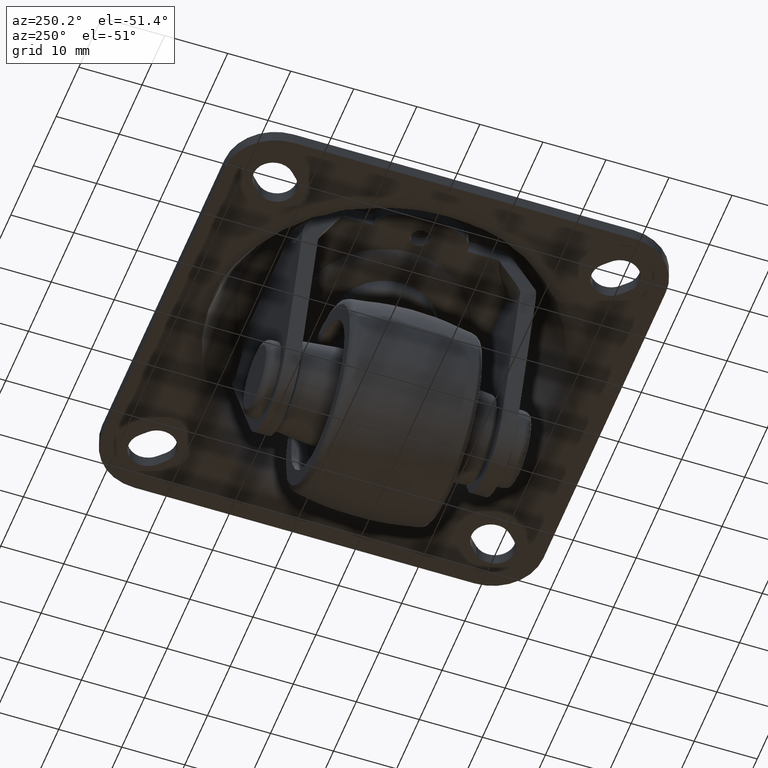
[diagram: clean part render]
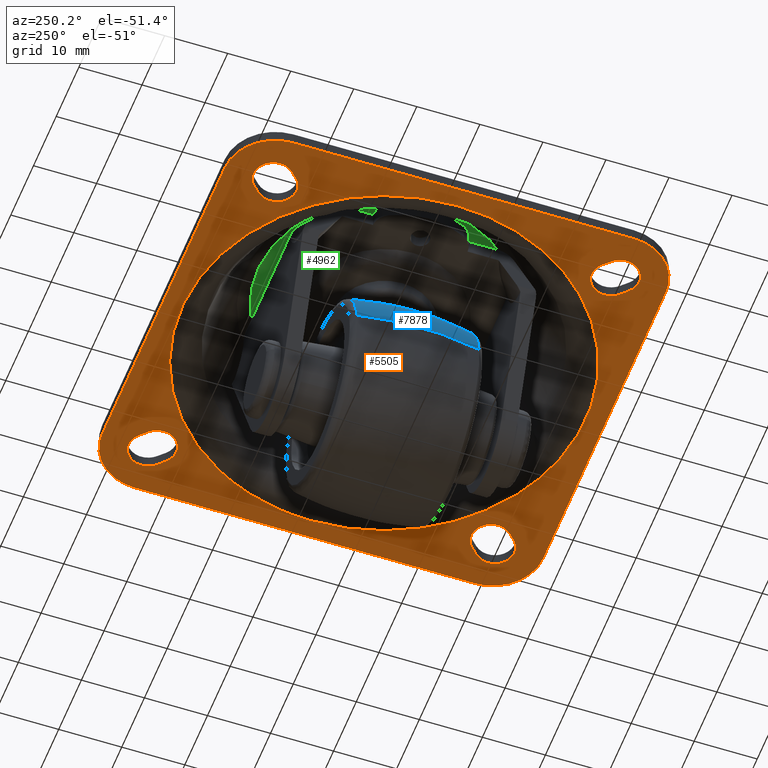
[diagram: same view with three faces highlighted in distinct colors, each labeled with its STEP entity id]
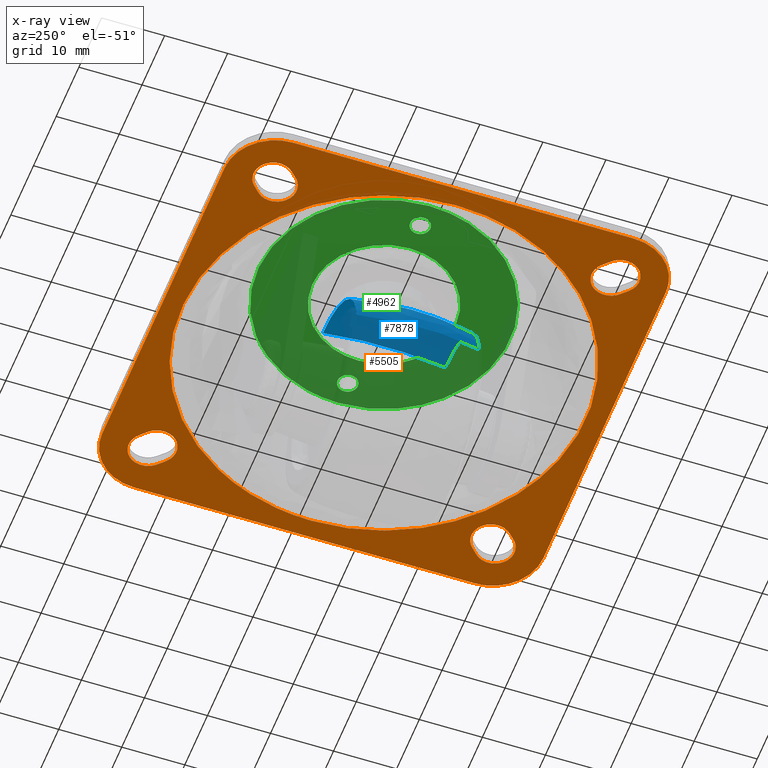
[diagram: x-ray of the same camera — body ghosted, the three highlighted faces saturated]
A machine part, auxiliary view with three faces highlighted in distinct colors.
The next image is the same camera in x-ray (body ghosted, the three faces saturated) — at least one of them is partly hidden behind the body in this view.
Their STEP definitions:

[orange] entity #5505 — the highlighted face is a freeform B-spline surface patch.
#2823=CARTESIAN_POINT('',(8.520049821626504,-30.844914508260882,12.0));
#2824=VERTEX_POINT('',#2823);
#2837=CARTESIAN_POINT('',(-32.0,0.0,12.0));
#2838=VERTEX_POINT('',#2837);
#2839=CARTESIAN_POINT('',(8.520049821626504,-30.844914508260882,12.0));
#2840=CARTESIAN_POINT('',(6.820120941786501,-31.314591219856670,11.999999999999989));
#2841=CARTESIAN_POINT('',(3.417989415884944,-31.957552290107429,12.000000000000020));
#2842=CARTESIAN_POINT('',(-1.580191762666555,-32.083023405706257,12.000000000000020));
#2843=CARTESIAN_POINT('',(-6.003802287628908,-31.523152856749821,11.999999999999980));
#2844=CARTESIAN_POINT('',(-9.868296184157263,-30.514635772380949,11.999999999999989));
#2845=CARTESIAN_POINT('',(-13.161909224199100,-29.236036852555049,12.000000000000020));
#2846=CARTESIAN_POINT('',(-15.275086916523749,-28.140949816604000,12.0));
#2847=CARTESIAN_POINT('',(-16.299388710217460,-27.538088613159299,12.0));
#2848=CARTESIAN_POINT('',(-16.430899640353260,-27.459197450203661,12.000000000000011));
#2849=CARTESIAN_POINT('',(-16.529697126706679,-27.400319993116849,12.0));
#2850=CARTESIAN_POINT('',(-16.923167670695129,-27.161899870809378,12.000000000000011));
#2851=CARTESIAN_POINT('',(-17.279560218860642,-26.936297520462801,12.000000000000011));
#2852=CARTESIAN_POINT('',(-17.631772602028050,-26.704330656711829,12.0));
#2853=CARTESIAN_POINT('',(-17.695557254235499,-26.661769287891371,12.0));
#2854=CARTESIAN_POINT('',(-17.823434928334731,-26.577110171790149,12.0));
#2855=CARTESIAN_POINT('',(-18.109485208261159,-26.384122705868101,12.0));
#2856=CARTESIAN_POINT('',(-18.424292391542942,-26.165236692742951,12.0));
#2857=CARTESIAN_POINT('',(-18.704849090781511,-25.964345425609189,12.0));
#2858=CARTESIAN_POINT('',(-18.828806260582422,-25.874045967000299,12.0));
#2859=CARTESIAN_POINT('',(-19.169504020907141,-25.625507800085391,12.0));
#2860=CARTESIAN_POINT('',(-19.505521381167132,-25.370600074018189,12.000000000000011));
#2861=CARTESIAN_POINT('',(-19.836946259549510,-25.109839999399760,12.0));
#2862=CARTESIAN_POINT('',(-19.926806578081880,-25.038058726512251,12.0));
#2863=CARTESIAN_POINT('',(-20.046924391724229,-24.942712124736961,12.000000000000011));
#2864=CARTESIAN_POINT('',(-20.374921991000630,-24.677598770820090,11.999999999999989));
#2865=CARTESIAN_POINT('',(-20.727632709363998,-24.382111235524839,12.0));
#2866=CARTESIAN_POINT('',(-21.046086110513681,-24.105604819110241,12.0));
#2867=CARTESIAN_POINT('',(-21.160998645596319,-24.004044245659159,12.0));
#2868=CARTESIAN_POINT('',(-21.247407270370609,-23.928138258830838,12.0));
#2869=CARTESIAN_POINT('',(-21.791200666525100,-23.443434101660600,11.999999999999980));
#2870=CARTESIAN_POINT('',(-22.319312282858832,-22.941212457328501,12.000000000000011));
#2871=CARTESIAN_POINT('',(-22.830718095968269,-22.422453848342311,12.0));
#2872=CARTESIAN_POINT('',(-22.910866476283040,-22.339968231481880,12.0));
#2873=CARTESIAN_POINT('',(-23.018029385342249,-22.230267568947699,12.0));
#2874=CARTESIAN_POINT('',(-24.479439184812399,-20.710077408008051,12.000000000000011));
#2875=CARTESIAN_POINT('',(-26.579547874015368,-18.050696996998450,12.0));
#2876=CARTESIAN_POINT('',(-28.996854039738039,-13.769320309948970,12.000000000000011));
#2877=CARTESIAN_POINT('',(-30.541250041142440,-9.873332882638167,12.0));
#2878=CARTESIAN_POINT('',(-31.242479761040592,-7.039866073001062,12.000000000000011));
#2879=CARTESIAN_POINT('',(-31.484739973103519,-5.720032951428039,12.0));
#2880=CARTESIAN_POINT('',(-31.504700772375941,-5.606766557408422,12.0));
#2881=CARTESIAN_POINT('',(-31.531747991825512,-5.455810424692682,12.0));
#2882=CARTESIAN_POINT('',(-31.654106808270789,-4.737697223486341,12.0));
#2883=CARTESIAN_POINT('',(-31.758559608784399,-3.977723137225266,12.0));
#2884=CARTESIAN_POINT('',(-31.834470375751771,-3.253225947318474,11.999999999999989));
#2885=CARTESIAN_POINT('',(-31.849151638773499,-3.100570654009919,12.000000000000080));
#2886=CARTESIAN_POINT('',(-31.860493366586159,-2.986119157255070,12.000000000000650));
#2887=CARTESIAN_POINT('',(-31.955188292271529,-1.955302477576776,11.999999999991710));
#2888=CARTESIAN_POINT('',(-32.000006119055392,-0.958484166725062,12.000000000017650));
#2889=CARTESIAN_POINT('',(-32.0,0.0,12.0));
#2890=B_SPLINE_CURVE_WITH_KNOTS('',3,(#2839,#2840,#2841,#2842,#2843,#2844,#2845,#2846,#2847,#2848,#2849,#2850,#2851,#2852,#2853,#2854,#2855,#2856,#2857,#2858,#2859,#2860,#2861,#2862,#2863,#2864,#2865,#2866,#2867,#2868,#2869,#2870,#2871,#2872,#2873,#2874,#2875,#2876,#2877,#2878,#2879,#2880,#2881,#2882,#2883,#2884,#2885,#2886,#2887,#2888,#2889),.UNSPECIFIED.,.F.,.U.,(4,1,1,1,1,1,1,1,1,1,1,2,1,1,1,1,1,1,1,1,1,1,1,1,1,1,1,1,1,1,1,1,1,1,1,1,1,1,1,1,1,1,1,1,1,1,1,4),(0.000157145432560,5.291001966385345,10.351823149021939,14.952572045780091,18.633167676503479,22.313768800537229,25.534307905527161,25.764346367551472,25.879365533310839,25.994384699070231,26.109377812959352,27.259569545411210,27.374590345005888,27.489611144600531,27.719652619901840,28.409775622489612,28.639815887903239,28.754835762272911,28.869855636642669,29.904970537765092,30.019961551233919,30.134981167546069,30.250000783858209,30.480040390569371,31.400201123253389,31.630241581789221,31.745261816448039,31.860282051106768,31.975281802334440,33.930627720238263,34.045623109073617,34.160642108735331,34.275661108397003,34.505699123967318,40.486681134033049,44.397322933629091,49.228111270571553,53.023740875308370,53.138736808825172,53.253756556325577,53.368776303825989,53.598815883313790,55.439132719430781,55.669171847178220,55.784191283295307,55.899210719412402,56.014206768346163,58.889660562029050),.UNSPECIFIED.);
#2891=EDGE_CURVE('',#2824,#2838,#2890,.T.);
#2893=CARTESIAN_POINT('',(30.307145759708199,10.270195513809400,12.0));
#2894=VERTEX_POINT('',#2893);
#2895=CARTESIAN_POINT('',(-32.0,0.0,12.0));
#2896=CARTESIAN_POINT('',(-32.000232217152003,1.993868847980252,11.999999999999989));
#2897=CARTESIAN_POINT('',(-31.719518726520349,4.984551695972015,12.000000000000030));
#2898=CARTESIAN_POINT('',(-30.700033903142302,9.267951402123771,11.999999999999980));
#2899=CARTESIAN_POINT('',(-29.582768499883532,12.363670786445480,11.999999999999959));
#2900=CARTESIAN_POINT('',(-27.885403879744910,15.845766178835360,12.000000000000121));
#2901=CARTESIAN_POINT('',(-25.952677636659271,18.867637129315991,11.999999999999810));
#2902=CARTESIAN_POINT('',(-23.657369292476879,21.617762387695539,12.000000000000121));
#2903=CARTESIAN_POINT('',(-21.241774308844182,24.016408688646081,12.000000000000350));
#2904=CARTESIAN_POINT('',(-18.763428557857569,25.998739277118140,11.999999999999011));
#2905=CARTESIAN_POINT('',(-15.645270368772531,27.986170633027822,12.000000000001220));
#2906=CARTESIAN_POINT('',(-12.959861074732499,29.317469492098081,11.999999999999600));
#2907=CARTESIAN_POINT('',(-9.721509737289532,30.541140840400541,12.000000000000201));
#2908=CARTESIAN_POINT('',(-6.942832259619093,31.295428748750339,11.999999999999771));
#2909=CARTESIAN_POINT('',(-3.700163098349872,31.829895967801090,12.000000000000441));
#2910=CARTESIAN_POINT('',(-0.186072916473823,32.085734168766002,11.999999999999870));
#2911=CARTESIAN_POINT('',(3.571982650421286,31.883357753219212,11.999999999999639));
#2912=CARTESIAN_POINT('',(7.039526387576758,31.261231722532148,12.000000000000581));
#2913=CARTESIAN_POINT('',(10.208831257942910,30.390241848451709,12.000000000000171));
#2914=CARTESIAN_POINT('',(13.328260621739259,29.170727112647210,11.999999999997639));
#2915=CARTESIAN_POINT('',(16.699500721463998,27.380658344583001,12.000000000001490));
#2916=CARTESIAN_POINT('',(19.892482990139939,25.179460989726749,11.999999999999160));
#2917=CARTESIAN_POINT('',(22.600944504792238,22.741957930710431,12.000000000000270));
#2918=CARTESIAN_POINT('',(25.069073084806000,19.988575476872882,12.000000000000060));
#2919=CARTESIAN_POINT('',(26.888014274116721,17.459991998950290,11.999999999999639));
#2920=CARTESIAN_POINT('',(28.809733285128988,14.097019822500750,12.000000000001020));
#2921=CARTESIAN_POINT('',(29.780249124663921,11.825358057097960,11.999999999998680));
#2922=CARTESIAN_POINT('',(30.307145759708199,10.270195513809400,12.0));
#2923=B_SPLINE_CURVE_WITH_KNOTS('',3,(#2895,#2896,#2897,#2898,#2899,#2900,#2901,#2902,#2903,#2904,#2905,#2906,#2907,#2908,#2909,#2910,#2911,#2912,#2913,#2914,#2915,#2916,#2917,#2918,#2919,#2920,#2921,#2922),.UNSPECIFIED.,.F.,.U.,(4,1,1,1,1,1,1,1,1,1,1,1,1,1,1,1,1,1,1,1,1,1,1,1,1,4),(0.000000074718699,5.981547048924853,8.972358379912450,13.194702393070100,15.833626157082680,20.583740217462580,23.926406302997890,26.565344287760841,30.787674765344530,33.426599010828632,37.648911652651329,39.760077608274649,43.806425176930091,46.269415253801270,49.612041414691468,54.362181793117671,57.528913005315061,60.167834576622980,64.214234937557706,67.556894440832366,71.603272704741244,75.825602748031315,78.464526601195061,82.686839341091314,85.149886193210492,90.075858004027182),.UNSPECIFIED.);
#2924=EDGE_CURVE('',#2838,#2894,#2923,.T.);
#3027=CARTESIAN_POINT('',(32.0,0.0,12.0));
#3028=VERTEX_POINT('',#3027);
#3029=CARTESIAN_POINT('',(30.307145759708199,10.270195513809400,12.0));
#3030=CARTESIAN_POINT('',(30.919001505124420,8.465166757896046,12.000000000000020));
#3031=CARTESIAN_POINT('',(31.741508520660890,5.064233026652261,12.000000000000011));
#3032=CARTESIAN_POINT('',(32.000079846685459,1.579177764870085,12.0));
#3033=CARTESIAN_POINT('',(32.0,0.0,12.0));
#3034=B_SPLINE_CURVE_WITH_KNOTS('',3,(#3029,#3030,#3031,#3032,#3033),.UNSPECIFIED.,.F.,.U.,(4,1,4),(1.898730E-009,5.717701363356365,10.455231704506129),.UNSPECIFIED.);
#3035=EDGE_CURVE('',#2894,#3028,#3034,.T.);
#3037=CARTESIAN_POINT('',(32.0,0.0,12.0));
#3038=CARTESIAN_POINT('',(32.000069081239552,-1.463956859757789,11.999999999999989));
#3039=CARTESIAN_POINT('',(31.809897861446661,-4.229188378021905,12.000000000000020));
#3040=CARTESIAN_POINT('',(31.103808948334319,-7.744188773981200,12.000000000000050));
#3041=CARTESIAN_POINT('',(30.149879399595608,-10.856908648709870,11.999999999999959));
#3042=CARTESIAN_POINT('',(28.894149444538900,-13.921820296727560,12.000000000000020));
#3043=CARTESIAN_POINT('',(27.288478971574541,-16.821021298709709,12.000000000000041));
#3044=CARTESIAN_POINT('',(25.399300576378291,-19.538766945449780,11.999999999999870));
#3045=CARTESIAN_POINT('',(23.547732736946308,-21.741779138353969,12.000000000000320));
#3046=CARTESIAN_POINT('',(21.144509034407079,-24.096874509792020,11.999999999999510));
#3047=CARTESIAN_POINT('',(18.549431784554521,-26.157370687705239,12.000000000001030));
#3048=CARTESIAN_POINT('',(15.328039920603770,-28.173653655898882,11.999999999999410));
#3049=CARTESIAN_POINT('',(12.037717990250750,-29.732038848123789,12.000000000000300));
#3050=CARTESIAN_POINT('',(9.617582667649847,-30.541765608622370,11.999999999999901));
#3051=CARTESIAN_POINT('',(8.520049821626504,-30.844914508260882,12.0));
#3052=B_SPLINE_CURVE_WITH_KNOTS('',3,(#3037,#3038,#3039,#3040,#3041,#3042,#3043,#3044,#3045,#3046,#3047,#3048,#3049,#3050,#3051),.UNSPECIFIED.,.F.,.U.,(4,1,1,1,1,1,1,1,1,1,1,1,4),(0.000000028885744,4.391864555746047,8.295756256434352,10.735689653456690,14.151601214418800,18.218163162536701,20.658093203348329,24.073947619649591,26.839207910116240,30.743107381424640,33.996356941714609,38.225565159000993,41.641459596939697),.UNSPECIFIED.);
#3053=EDGE_CURVE('',#3028,#2824,#3052,.T.);
#3996=CARTESIAN_POINT('',(-28.692043405757801,24.307985362410051,12.0));
#3997=VERTEX_POINT('',#3996);
#3998=CARTESIAN_POINT('',(-29.692043405757751,25.307989362437901,12.0));
#3999=VERTEX_POINT('',#3998);
#4000=CARTESIAN_POINT('',(-28.692043405757801,24.307985362410051,12.0));
#4001=CARTESIAN_POINT('',(-29.692043405757751,25.307989362437901,12.0));
#4002=QUASI_UNIFORM_CURVE('',1,(#4000,#4001),.UNSPECIFIED.,.F.,.U.);
#4003=EDGE_CURVE('',#3997,#3999,#4002,.T.);
#4045=CARTESIAN_POINT('',(-29.692034638742211,29.692051404633570,12.0));
#4046=VERTEX_POINT('',#4045);
#4047=CARTESIAN_POINT('',(-29.692043405757751,25.307989362437901,12.0));
#4048=CARTESIAN_POINT('',(-29.943347556762919,25.558892184186028,12.000000000000011));
#4049=CARTESIAN_POINT('',(-30.239349577292391,25.979959553305822,12.0));
#4050=CARTESIAN_POINT('',(-30.500155883197611,26.656203348967999,12.000000000000011));
#4051=CARTESIAN_POINT('',(-30.618338407505469,27.269672656251409,12.0));
#4052=CARTESIAN_POINT('',(-30.593389721591141,27.946368921682321,11.999999999999959));
#4053=CARTESIAN_POINT('',(-30.418017012207269,28.611736894882739,12.000000000000201));
#4054=CARTESIAN_POINT('',(-30.125435120458331,29.192929445004559,11.999999999999780));
#4055=CARTESIAN_POINT('',(-29.844489419407768,29.539641490340209,12.000000000000140));
#4056=CARTESIAN_POINT('',(-29.692034638742211,29.692051404633570,12.0));
#4057=B_SPLINE_CURVE_WITH_KNOTS('',3,(#4047,#4048,#4049,#4050,#4051,#4052,#4053,#4054,#4055,#4056),.UNSPECIFIED.,.F.,.U.,(4,1,1,1,1,1,1,4),(0.000000116074839,1.065202043707089,1.521727488511663,2.168455497099209,2.929293761621871,3.537993669702115,4.222786017488892,4.869499166005423),.UNSPECIFIED.);
#4058=EDGE_CURVE('',#3999,#4046,#4057,.T.);
#4060=CARTESIAN_POINT('',(-25.307972594242202,29.692042637617948,12.0));
#4061=VERTEX_POINT('',#4060);
#4062=CARTESIAN_POINT('',(-29.692034638742211,29.692051404633570,12.0));
#4063=CARTESIAN_POINT('',(-29.521696022205521,29.862449972399549,12.0));
#4064=CARTESIAN_POINT('',(-29.151038870176070,30.155286480527550,12.0));
#4065=CARTESIAN_POINT('',(-28.424450607700869,30.499128836782770,11.999999999999989));
#4066=CARTESIAN_POINT('',(-27.639943306432581,30.635234884007179,12.000000000000080));
#4067=CARTESIAN_POINT('',(-26.878107267269598,30.560030326890612,11.999999999999970));
#4068=CARTESIAN_POINT('',(-26.088511181873109,30.309973561001179,12.000000000000011));
#4069=CARTESIAN_POINT('',(-25.585696295471561,29.970362686962201,11.999999999999959));
#4070=CARTESIAN_POINT('',(-25.307972594242202,29.692042637617948,12.0));
#4071=B_SPLINE_CURVE_WITH_KNOTS('',3,(#4062,#4063,#4064,#4065,#4066,#4067,#4068,#4069,#4070),.UNSPECIFIED.,.F.,.U.,(4,1,1,1,1,1,4),(0.000000116092674,0.722808371582734,1.407590927792692,2.396741213183710,3.081462803268646,3.690167687733958,4.869499167842172),.UNSPECIFIED.);
#4072=EDGE_CURVE('',#4046,#4061,#4071,.T.);
#4118=CARTESIAN_POINT('',(-24.307972594242202,28.692038637590048,12.0));
#4119=VERTEX_POINT('',#4118);
#4120=CARTESIAN_POINT('',(-25.307972594242202,29.692042637617948,12.0));
#4121=CARTESIAN_POINT('',(-24.307972594242202,28.692038637590048,12.0));
#4122=QUASI_UNIFORM_CURVE('',1,(#4120,#4121),.UNSPECIFIED.,.F.,.U.);
#4123=EDGE_CURVE('',#4061,#4119,#4122,.T.);
#4159=CARTESIAN_POINT('',(-24.307981361257820,24.307976595394400,12.0));
#4160=VERTEX_POINT('',#4159);
#4161=CARTESIAN_POINT('',(-24.307972594242202,28.692038637590048,12.0));
#4162=CARTESIAN_POINT('',(-24.029672539873630,28.414287397209861,12.000000000000030));
#4163=CARTESIAN_POINT('',(-23.711738491770131,27.943615835489940,11.999999999999959));
#4164=CARTESIAN_POINT('',(-23.443478324905168,27.147957081171668,12.000000000000030));
#4165=CARTESIAN_POINT('',(-23.372980059128750,26.512058145491409,11.999999999999989));
#4166=CARTESIAN_POINT('',(-23.464741987946120,25.727799238265959,12.0));
#4167=CARTESIAN_POINT('',(-23.746491014687152,24.983908039123829,12.0));
#4168=CARTESIAN_POINT('',(-24.110663871941259,24.505193788743401,12.000000000000011));
#4169=CARTESIAN_POINT('',(-24.307981361257820,24.307976595394400,12.0));
#4170=B_SPLINE_CURVE_WITH_KNOTS('',3,(#4161,#4162,#4163,#4164,#4165,#4166,#4167,#4168,#4169),.UNSPECIFIED.,.F.,.U.,(4,1,1,1,1,1,4),(0.000000116098374,1.179331348941763,1.673897690021353,2.510821043586338,3.081462802107978,4.032558194065615,4.869499166005405),.UNSPECIFIED.);
#4171=EDGE_CURVE('',#4119,#4160,#4170,.T.);
#4173=CARTESIAN_POINT('',(-24.307981361257820,24.307976595394400,12.0));
#4174=CARTESIAN_POINT('',(-24.558923044692580,24.056736675506521,12.000000000000011));
#4175=CARTESIAN_POINT('',(-25.022019566415739,23.730993329866340,12.000000000000020));
#4176=CARTESIAN_POINT('',(-25.717950361070191,23.482137177470680,11.999999999999989));
#4177=CARTESIAN_POINT('',(-26.333676831633440,23.383025765619610,12.000000000000050));
#4178=CARTESIAN_POINT('',(-26.984205961379448,23.410959873275921,11.999999999999940));
#4179=CARTESIAN_POINT('',(-27.635905300127341,23.591335436010151,12.000000000000060));
#4180=CARTESIAN_POINT('',(-28.212729511680330,23.890647687205941,11.999999999999980));
#4181=CARTESIAN_POINT('',(-28.539631870760999,24.155532551251159,12.0));
#4182=CARTESIAN_POINT('',(-28.692043405757801,24.307985362410051,12.0));
#4183=B_SPLINE_CURVE_WITH_KNOTS('',3,(#4173,#4174,#4175,#4176,#4177,#4178,#4179,#4180,#4181,#4182),.UNSPECIFIED.,.F.,.U.,(4,1,1,1,1,1,1,4),(0.000000116095420,1.065202044123700,1.673897690649319,2.206520313462040,2.929293762734953,3.614081134622140,4.222786019084050,4.869499167842150),.UNSPECIFIED.);
#4184=EDGE_CURVE('',#4160,#3997,#4183,.T.);
#4236=CARTESIAN_POINT('',(25.307972594242202,29.692042637617948,12.0));
#4237=VERTEX_POINT('',#4236);
#4238=CARTESIAN_POINT('',(29.692034636437850,29.692051406937921,12.0));
#4239=VERTEX_POINT('',#4238);
#4240=CARTESIAN_POINT('',(25.307972594242202,29.692042637617948,12.0));
#4241=CARTESIAN_POINT('',(25.514138472457208,29.898364432064412,12.000000000000011));
#4242=CARTESIAN_POINT('',(25.903363084162031,30.190506654817970,12.0));
#4243=CARTESIAN_POINT('',(26.568772697324171,30.480610106552341,12.000000000000020));
#4244=CARTESIAN_POINT('',(27.156558866456031,30.601265495733632,12.000000000000011));
#4245=CARTESIAN_POINT('',(27.881692151122579,30.605800497236618,12.000000000000030));
#4246=CARTESIAN_POINT('',(28.556745273528168,30.449912225021620,12.000000000000020));
#4247=CARTESIAN_POINT('',(29.212710802169269,30.109358362421862,12.000000000000069));
#4248=CARTESIAN_POINT('',(29.539624948533831,29.844506703523301,11.999999999999909));
#4249=CARTESIAN_POINT('',(29.692034636437850,29.692051406937921,12.0));
#4250=B_SPLINE_CURVE_WITH_KNOTS('',3,(#4240,#4241,#4242,#4243,#4244,#4245,#4246,#4247,#4248,#4249),.UNSPECIFIED.,.F.,.U.,(4,1,1,1,1,1,1,4),(0.000000116080709,0.874978999271609,1.445640205112389,2.168455497100274,2.662979799236829,3.614081133255592,4.222786017488907,4.869499166005417),.UNSPECIFIED.);
#4251=EDGE_CURVE('',#4237,#4239,#4250,.T.);
#4253=CARTESIAN_POINT('',(29.692043405757801,25.307989362437901,12.0));
#4254=VERTEX_POINT('',#4253);
#4255=CARTESIAN_POINT('',(29.692034636437850,29.692051406937921,12.0));
#4256=CARTESIAN_POINT('',(29.916330471463599,29.467978063355261,12.000000000000020));
#4257=CARTESIAN_POINT('',(30.196558507199590,29.084822453721848,12.0));
#4258=CARTESIAN_POINT('',(30.462057549234078,28.465384873039099,12.0));
#4259=CARTESIAN_POINT('',(30.579814973919859,27.969508501339220,12.000000000000011));
#4260=CARTESIAN_POINT('',(30.614136604722638,27.411088258321509,12.000000000000020));
#4261=CARTESIAN_POINT('',(30.557956826613289,26.904518270406019,11.999999999999959));
#4262=CARTESIAN_POINT('',(30.395063503112070,26.342724471011898,11.999999999999989));
#4263=CARTESIAN_POINT('',(30.125448958540250,25.807113185894771,12.000000000000011));
#4264=CARTESIAN_POINT('',(29.844496276486151,25.460399787857408,12.000000000000030));
#4265=CARTESIAN_POINT('',(29.692043405757801,25.307989362437901,12.0));
#4266=B_SPLINE_CURVE_WITH_KNOTS('',3,(#4255,#4256,#4257,#4258,#4259,#4260,#4261,#4262,#4263,#4264,#4265),.UNSPECIFIED.,.F.,.U.,(4,1,1,1,1,1,1,1,4),(0.000000116090565,0.951066480107171,1.407590927790954,2.016291294791576,2.472757173633371,3.081462803267864,3.537993671039724,4.222786019083896,4.869499167842192),.UNSPECIFIED.);
#4267=EDGE_CURVE('',#4239,#4254,#4266,.T.);
#4328=CARTESIAN_POINT('',(24.307972594242202,28.692038637590048,12.0));
#4329=VERTEX_POINT('',#4328);
#4335=CARTESIAN_POINT('',(25.307972594242202,29.692042637617948,12.0));
#4336=CARTESIAN_POINT('',(24.307972594242202,28.692038637590048,12.0));
#4337=QUASI_UNIFORM_CURVE('',1,(#4335,#4336),.UNSPECIFIED.,.F.,.U.);
#4338=EDGE_CURVE('',#4237,#4329,#4337,.T.);
#4361=CARTESIAN_POINT('',(28.692043405757801,24.307985362410001,12.0));
#4362=VERTEX_POINT('',#4361);
#4363=CARTESIAN_POINT('',(24.307980605167501,24.307977351481959,12.0));
#4364=VERTEX_POINT('',#4363);
#4365=CARTESIAN_POINT('',(28.692043405757801,24.307985362410001,12.0));
#4366=CARTESIAN_POINT('',(28.467978986910719,24.083692275984468,12.000000000000041));
#4367=CARTESIAN_POINT('',(28.012321694418191,23.750400185171429,11.999999999999909));
#4368=CARTESIAN_POINT('',(27.331746660165731,23.492685670663931,12.000000000000140));
#4369=CARTESIAN_POINT('',(26.742025002532920,23.394122173348670,11.999999999999840));
#4370=CARTESIAN_POINT('',(26.156243333154471,23.397676417521669,12.000000000000259));
#4371=CARTESIAN_POINT('',(25.544631886415750,23.527145818542401,11.999999999999771));
#4372=CARTESIAN_POINT('',(24.892279678421740,23.816331604377911,12.000000000000149));
#4373=CARTESIAN_POINT('',(24.505189563465130,24.110635944400229,11.999999999999980));
#4374=CARTESIAN_POINT('',(24.307980605167501,24.307977351481959,12.0));
#4375=B_SPLINE_CURVE_WITH_KNOTS('',3,(#4365,#4366,#4367,#4368,#4369,#4370,#4371,#4372,#4373,#4374),.UNSPECIFIED.,.F.,.U.,(4,1,1,1,1,1,1,4),(0.000000115913327,0.951066597660040,1.673897897820242,2.168455765540407,2.739065390498487,3.423861573792138,4.032558694943303,4.869499770504660),.UNSPECIFIED.);
#4376=EDGE_CURVE('',#4362,#4364,#4375,.T.);
#4378=CARTESIAN_POINT('',(24.307980605167501,24.307977351481959,12.0));
#4379=CARTESIAN_POINT('',(24.119623493881591,24.496230235425571,12.000000000000011));
#4380=CARTESIAN_POINT('',(23.807532173730841,24.901425842635899,11.999999999999980));
#4381=CARTESIAN_POINT('',(23.516689921752150,25.568525931216179,12.000000000000050));
#4382=CARTESIAN_POINT('',(23.381701614161891,26.269660355351458,11.999999999999940));
#4383=CARTESIAN_POINT('',(23.407538484496289,26.971893841240490,12.000000000000020));
#4384=CARTESIAN_POINT('',(23.591325293588650,27.635900642536800,11.999999999999959));
#4385=CARTESIAN_POINT('',(23.890643018692270,28.212718373754289,12.000000000000130));
#4386=CARTESIAN_POINT('',(24.155515869367601,28.539629983201060,11.999999999999970));
#4387=CARTESIAN_POINT('',(24.307972594242202,28.692038637590048,12.0));
#4388=B_SPLINE_CURVE_WITH_KNOTS('',3,(#4378,#4379,#4380,#4381,#4382,#4383,#4384,#4385,#4386,#4387),.UNSPECIFIED.,.F.,.U.,(4,1,1,1,1,1,1,4),(0.000000116273465,0.798892677682217,1.521727300332241,2.168455229490538,2.929293398475837,3.614080686043661,4.222785494632045,4.869498563342622),.UNSPECIFIED.);
#4389=EDGE_CURVE('',#4364,#4329,#4388,.T.);
#4442=CARTESIAN_POINT('',(28.692043405757801,24.307985362410001,12.0));
#4443=CARTESIAN_POINT('',(29.692043405757801,25.307989362437901,12.0));
#4444=QUASI_UNIFORM_CURVE('',1,(#4442,#4443),.UNSPECIFIED.,.F.,.U.);
#4445=EDGE_CURVE('',#4362,#4254,#4444,.T.);
#4455=CARTESIAN_POINT('',(28.692043405757751,-24.307985362409951,12.0));
#4456=VERTEX_POINT('',#4455);
#4457=CARTESIAN_POINT('',(29.692043405757801,-25.307989362437851,12.0));
#4458=VERTEX_POINT('',#4457);
#4459=CARTESIAN_POINT('',(28.692043405757751,-24.307985362409951,12.0));
#4460=CARTESIAN_POINT('',(29.692043405757801,-25.307989362437851,12.0));
#4461=QUASI_UNIFORM_CURVE('',1,(#4459,#4460),.UNSPECIFIED.,.F.,.U.);
#4462=EDGE_CURVE('',#4456,#4458,#4461,.T.);
#4504=CARTESIAN_POINT('',(29.692033880347299,-29.692052163025089,12.0));
#4505=VERTEX_POINT('',#4504);
#4506=CARTESIAN_POINT('',(29.692043405757801,-25.307989362437851,12.0));
#4507=CARTESIAN_POINT('',(29.898363469316958,-25.514158973555890,12.000000000000030));
#4508=CARTESIAN_POINT('',(30.167433062818692,-25.872650535981919,11.999999999999959));
#4509=CARTESIAN_POINT('',(30.448082877116949,-26.485374198020359,12.000000000000091));
#4510=CARTESIAN_POINT('',(30.578271610667340,-27.005148999550808,11.999999999999870));
#4511=CARTESIAN_POINT('',(30.614133740247929,-27.588957855876050,12.000000000000240));
#4512=CARTESIAN_POINT('',(30.559354987038780,-28.082859686822140,11.999999999999931));
#4513=CARTESIAN_POINT('',(30.399990681216352,-28.645404621278349,12.000000000000041));
#4514=CARTESIAN_POINT('',(30.133479126717109,-29.183027321316921,11.999999999999920));
#4515=CARTESIAN_POINT('',(29.844484925980399,-29.539641443981250,12.000000000000110));
#4516=CARTESIAN_POINT('',(29.692033880347299,-29.692052163025089,12.0));
#4517=B_SPLINE_CURVE_WITH_KNOTS('',3,(#4506,#4507,#4508,#4509,#4510,#4511,#4512,#4513,#4514,#4515,#4516),.UNSPECIFIED.,.F.,.U.,(4,1,1,1,1,1,1,1,4),(0.000000115893795,0.874979107753336,1.331505313965581,2.016291544498642,2.472757479729107,3.081463185015092,3.499948727481144,4.222786541940168,4.869499770504924),.UNSPECIFIED.);
#4518=EDGE_CURVE('',#4458,#4505,#4517,.T.);
#4520=CARTESIAN_POINT('',(25.307972594242202,-29.692042637617899,12.0));
#4521=VERTEX_POINT('',#4520);
#4522=CARTESIAN_POINT('',(29.692033880347299,-29.692052163025089,12.0));
#4523=CARTESIAN_POINT('',(29.485860507074211,-29.898358475259290,11.999999999999980));
#4524=CARTESIAN_POINT('',(29.035210853434268,-30.236706853817090,12.000000000000060));
#4525=CARTESIAN_POINT('',(28.356837922413760,-30.503164666717449,11.999999999999940));
#4526=CARTESIAN_POINT('',(27.629072483994410,-30.624886893829849,12.000000000000091));
#4527=CARTESIAN_POINT('',(26.925411585624548,-30.581653433729631,11.999999999999860));
#4528=CARTESIAN_POINT('',(26.065244913142351,-30.297460434824149,12.000000000000121));
#4529=CARTESIAN_POINT('',(25.567823189131751,-29.952330424174281,11.999999999999860));
#4530=CARTESIAN_POINT('',(25.307972594242202,-29.692042637617899,12.0));
#4531=B_SPLINE_CURVE_WITH_KNOTS('',3,(#4522,#4523,#4524,#4525,#4526,#4527,#4528,#4529,#4530),.UNSPECIFIED.,.F.,.U.,(4,1,1,1,1,1,4),(0.000000116277315,0.874978891127738,1.673897482846541,2.168455229492368,3.081462420353222,3.766254683817440,4.869498563342634),.UNSPECIFIED.);
#4532=EDGE_CURVE('',#4505,#4521,#4531,.T.);
#4577=CARTESIAN_POINT('',(24.307972594242202,-28.692038637589999,12.0));
#4578=VERTEX_POINT('',#4577);
#4579=CARTESIAN_POINT('',(25.307972594242202,-29.692042637617899,12.0));
#4580=CARTESIAN_POINT('',(24.307972594242202,-28.692038637589999,12.0));
#4581=QUASI_UNIFORM_CURVE('',1,(#4579,#4580),.UNSPECIFIED.,.F.,.U.);
#4582=EDGE_CURVE('',#4521,#4578,#4581,.T.);
#4618=CARTESIAN_POINT('',(24.307981361257781,-24.307976595394329,12.0));
#4619=VERTEX_POINT('',#4618);
#4620=CARTESIAN_POINT('',(24.307972594242202,-28.692038637589999,12.0));
#4621=CARTESIAN_POINT('',(24.137573590870861,-28.521700051325372,12.000000000000020));
#4622=CARTESIAN_POINT('',(23.844717196539211,-28.151046390407650,11.999999999999989));
#4623=CARTESIAN_POINT('',(23.533748615649120,-27.493643430438819,12.000000000000020));
#4624=CARTESIAN_POINT('',(23.390858621578879,-26.818660075153730,11.999999999999950));
#4625=CARTESIAN_POINT('',(23.398584345135610,-26.194340338710390,12.000000000000050));
#4626=CARTESIAN_POINT('',(23.516390053116531,-25.582221484198630,11.999999999999931));
#4627=CARTESIAN_POINT('',(23.785313977119738,-24.933000891593821,12.000000000000080));
#4628=CARTESIAN_POINT('',(24.110646213646550,-24.505188984475058,12.000000000000020));
#4629=CARTESIAN_POINT('',(24.307981361257781,-24.307976595394329,12.0));
#4630=B_SPLINE_CURVE_WITH_KNOTS('',3,(#4620,#4621,#4622,#4623,#4624,#4625,#4626,#4627,#4628,#4629),.UNSPECIFIED.,.F.,.U.,(4,1,1,1,1,1,1,4),(0.000000116119089,0.722808371332008,1.407590927280094,2.168455497121074,2.777135987038342,3.271690625535007,4.032558194068233,4.869499166005301),.UNSPECIFIED.);
#4631=EDGE_CURVE('',#4578,#4619,#4630,.T.);
#4633=CARTESIAN_POINT('',(24.307981361257781,-24.307976595394329,12.0));
#4634=CARTESIAN_POINT('',(24.558894000918890,-24.056708716376949,12.0));
#4635=CARTESIAN_POINT('',(25.074673522843270,-23.693971420697970,12.000000000000011));
#4636=CARTESIAN_POINT('',(25.877615303799839,-23.434219923288460,12.0));
#4637=CARTESIAN_POINT('',(26.500382797480320,-23.384495176035369,12.0));
#4638=CARTESIAN_POINT('',(27.082566989945089,-23.438217394519071,12.000000000000011));
#4639=CARTESIAN_POINT('',(27.574403945905740,-23.574333714486070,11.999999999999920));
#4640=CARTESIAN_POINT('',(28.158682955676451,-23.855066657626651,12.000000000000220));
#4641=CARTESIAN_POINT('',(28.494833024787710,-24.110644086648410,11.999999999999799));
#4642=CARTESIAN_POINT('',(28.692043405757751,-24.307985362409951,12.0));
#4643=B_SPLINE_CURVE_WITH_KNOTS('',3,(#4633,#4634,#4635,#4636,#4637,#4638,#4639,#4640,#4641,#4642),.UNSPECIFIED.,.F.,.U.,(4,1,1,1,1,1,1,4),(0.000000116095734,1.065202044125185,1.864124640716853,2.510821044534422,2.929293762735978,3.614081134622487,4.032558195586630,4.869499167842132),.UNSPECIFIED.);
#4644=EDGE_CURVE('',#4619,#4456,#4643,.T.);
#4682=CARTESIAN_POINT('',(-24.307972594242202,-28.692038637589999,12.0));
#4683=VERTEX_POINT('',#4682);
#4684=CARTESIAN_POINT('',(-25.307972594242202,-29.692042637617899,12.0));
#4685=VERTEX_POINT('',#4684);
#4686=CARTESIAN_POINT('',(-24.307972594242202,-28.692038637589999,12.0));
#4687=CARTESIAN_POINT('',(-25.307972594242202,-29.692042637617899,12.0));
#4688=QUASI_UNIFORM_CURVE('',1,(#4686,#4687),.UNSPECIFIED.,.F.,.U.);
#4689=EDGE_CURVE('',#4683,#4685,#4688,.T.);
#4731=CARTESIAN_POINT('',(-29.692035394832491,-29.692050648545941,12.0));
#4732=VERTEX_POINT('',#4731);
#4733=CARTESIAN_POINT('',(-25.307972594242202,-29.692042637617899,12.0));
#4734=CARTESIAN_POINT('',(-25.460384762653391,-29.844498350654469,11.999999999999989));
#4735=CARTESIAN_POINT('',(-25.807102393538450,-30.125425770978801,12.000000000000020));
#4736=CARTESIAN_POINT('',(-26.490831930852789,-30.469787028653499,12.000000000000050));
#4737=CARTESIAN_POINT('',(-27.182070916353830,-30.611664109125499,11.999999999999909));
#4738=CARTESIAN_POINT('',(-27.881229730432288,-30.594396334610121,12.000000000000041));
#4739=CARTESIAN_POINT('',(-28.455380700262989,-30.472882785864581,12.000000000000080));
#4740=CARTESIAN_POINT('',(-29.107735963191860,-30.183698452425890,11.999999999999890));
#4741=CARTESIAN_POINT('',(-29.494830472197389,-29.889395762246160,12.000000000000060));
#4742=CARTESIAN_POINT('',(-29.692035394832491,-29.692050648545941,12.0));
#4743=B_SPLINE_CURVE_WITH_KNOTS('',3,(#4733,#4734,#4735,#4736,#4737,#4738,#4739,#4740,#4741,#4742),.UNSPECIFIED.,.F.,.U.,(4,1,1,1,1,1,1,4),(0.000000115902763,0.646723700510771,1.331505313971495,2.282602714981330,2.739065390493575,3.423861573788791,4.032558694941771,4.869499770504786),.UNSPECIFIED.);
#4744=EDGE_CURVE('',#4685,#4732,#4743,.T.);
#4746=CARTESIAN_POINT('',(-29.692043405757801,-25.307989362437851,12.0));
#4747=VERTEX_POINT('',#4746);
#4748=CARTESIAN_POINT('',(-29.692035394832491,-29.692050648545941,12.0));
#4749=CARTESIAN_POINT('',(-29.943340129582360,-29.441148536406072,11.999999999999950));
#4750=CARTESIAN_POINT('',(-30.239344785117680,-29.020083102690609,12.000000000000099));
#4751=CARTESIAN_POINT('',(-30.500153765839659,-28.343839625121209,11.999999999999970));
#4752=CARTESIAN_POINT('',(-30.618331132322371,-27.730373307140660,11.999999999999950));
#4753=CARTESIAN_POINT('',(-30.592472434388711,-27.028132561338040,12.000000000000179));
#4754=CARTESIAN_POINT('',(-30.408691527173801,-26.364127594925002,11.999999999999609));
#4755=CARTESIAN_POINT('',(-30.109372842028922,-25.787309630730029,12.000000000000711));
#4756=CARTESIAN_POINT('',(-29.844500443873979,-25.460397769498329,11.999999999999231));
#4757=CARTESIAN_POINT('',(-29.692043405757801,-25.307989362437851,12.0));
#4758=B_SPLINE_CURVE_WITH_KNOTS('',3,(#4748,#4749,#4750,#4751,#4752,#4753,#4754,#4755,#4756,#4757),.UNSPECIFIED.,.F.,.U.,(4,1,1,1,1,1,1,4),(0.000000116278700,1.065201912007325,1.521727300335405,2.168455229492834,2.929293398477557,3.614080686044823,4.222785494632462,4.869498563342622),.UNSPECIFIED.);
#4759=EDGE_CURVE('',#4732,#4747,#4758,.T.);
#4805=CARTESIAN_POINT('',(-28.692043405757801,-24.307985362409951,12.0));
#4806=VERTEX_POINT('',#4805);
#4807=CARTESIAN_POINT('',(-29.692043405757801,-25.307989362437851,12.0));
#4808=CARTESIAN_POINT('',(-28.692043405757801,-24.307985362409951,12.0));
#4809=QUASI_UNIFORM_CURVE('',1,(#4807,#4808),.UNSPECIFIED.,.F.,.U.);
#4810=EDGE_CURVE('',#4747,#4806,#4809,.T.);
#4846=CARTESIAN_POINT('',(-24.307981363562149,-24.307976593089979,12.0));
#4847=VERTEX_POINT('',#4846);
#4848=CARTESIAN_POINT('',(-28.692043405757801,-24.307985362409951,12.0));
#4849=CARTESIAN_POINT('',(-28.503791788021552,-24.119630095401899,12.0));
#4850=CARTESIAN_POINT('',(-28.128978104076189,-23.830954417997440,12.000000000000020));
#4851=CARTESIAN_POINT('',(-27.468643562934378,-23.528498086518280,11.999999999999989));
#4852=CARTESIAN_POINT('',(-26.718675502402540,-23.369599600706170,12.000000000000011));
#4853=CARTESIAN_POINT('',(-25.951004827317188,-23.416805229486801,12.000000000000011));
#4854=CARTESIAN_POINT('',(-25.088527972224369,-23.690082277440119,12.000000000000020));
#4855=CARTESIAN_POINT('',(-24.585704733496339,-24.029648834669999,12.0));
#4856=CARTESIAN_POINT('',(-24.307981363562149,-24.307976593089979,12.0));
#4857=B_SPLINE_CURVE_WITH_KNOTS('',3,(#4848,#4849,#4850,#4851,#4852,#4853,#4854,#4855,#4856),.UNSPECIFIED.,.F.,.U.,(4,1,1,1,1,1,4),(0.000000116094972,0.798892776452119,1.407590927265400,2.168455497111178,3.081462802108263,3.690167686344362,4.869499166005423),.UNSPECIFIED.);
#4858=EDGE_CURVE('',#4806,#4847,#4857,.T.);
#4860=CARTESIAN_POINT('',(-24.307981363562149,-24.307976593089979,12.0));
#4861=CARTESIAN_POINT('',(-24.056711132433492,-24.558888158390062,12.000000000000030));
#4862=CARTESIAN_POINT('',(-23.693976975582832,-25.074666366476041,11.999999999999959));
#4863=CARTESIAN_POINT('',(-23.434213381679989,-25.877606988221981,12.000000000000041));
#4864=CARTESIAN_POINT('',(-23.384494529388711,-26.500375019197829,11.999999999999950));
#4865=CARTESIAN_POINT('',(-23.435889601516848,-27.057237886270791,12.000000000000011));
#4866=CARTESIAN_POINT('',(-23.575507823061749,-27.587070041777050,12.000000000000011));
#4867=CARTESIAN_POINT('',(-23.860569817091140,-28.171073429687951,11.999999999999970));
#4868=CARTESIAN_POINT('',(-24.137565169286169,-28.521708272625080,11.999999999999989));
#4869=CARTESIAN_POINT('',(-24.307972594242202,-28.692038637589999,12.0));
#4870=B_SPLINE_CURVE_WITH_KNOTS('',3,(#4860,#4861,#4862,#4863,#4864,#4865,#4866,#4867,#4868,#4869),.UNSPECIFIED.,.F.,.U.,(4,1,1,1,1,1,1,4),(0.000000116083831,1.065202044115380,1.864124640708970,2.510821044528746,2.929293762731706,3.537993671038796,4.146698817295068,4.869499167842195),.UNSPECIFIED.);
#4871=EDGE_CURVE('',#4847,#4683,#4870,.T.);
#5029=CARTESIAN_POINT('',(26.999999581120949,35.000003999999947,12.0));
#5030=VERTEX_POINT('',#5029);
#5031=CARTESIAN_POINT('',(-27.0,35.000003999999997,12.0));
#5032=VERTEX_POINT('',#5031);
#5033=CARTESIAN_POINT('',(26.999999581120949,35.000003999999947,12.0));
#5034=CARTESIAN_POINT('',(-27.0,35.000003999999997,12.0));
#5035=QUASI_UNIFORM_CURVE('',1,(#5033,#5034),.UNSPECIFIED.,.F.,.U.);
#5036=EDGE_CURVE('',#5030,#5032,#5035,.T.);
#5074=CARTESIAN_POINT('',(35.0,27.000003999999951,12.0));
#5075=VERTEX_POINT('',#5074);
#5076=CARTESIAN_POINT('',(35.0,27.000003999999951,12.0));
#5077=CARTESIAN_POINT('',(35.000018011510051,27.425421949132009,12.0));
#5078=CARTESIAN_POINT('',(34.921554615931854,28.407174938337722,12.000000000000011));
#5079=CARTESIAN_POINT('',(34.509750174058603,29.931896622856978,12.0));
#5080=CARTESIAN_POINT('',(33.690949824817309,31.510110007354200,12.000000000000041));
#5081=CARTESIAN_POINT('',(32.601207884568922,32.789161515667949,11.999999999999870));
#5082=CARTESIAN_POINT('',(31.435904342954970,33.698434422035611,12.000000000000240));
#5083=CARTESIAN_POINT('',(30.372242947206381,34.283830697885719,11.999999999999780));
#5084=CARTESIAN_POINT('',(28.930604503510729,34.829973588260373,12.000000000000220));
#5085=CARTESIAN_POINT('',(27.785440408041168,35.000324272523230,11.999999999999890));
#5086=CARTESIAN_POINT('',(26.999999581120949,35.000003999999947,12.0));
#5087=B_SPLINE_CURVE_WITH_KNOTS('',3,(#5076,#5077,#5078,#5079,#5080,#5081,#5082,#5083,#5084,#5085,#5086),.UNSPECIFIED.,.F.,.U.,(4,1,1,1,1,1,1,1,4),(0.000000056921031,1.276265610682508,2.945259577862748,4.712424969919418,6.577718120276897,7.952191398895693,9.130310315378026,10.210249182628189,12.566449699090720),.UNSPECIFIED.);
#5088=EDGE_CURVE('',#5075,#5030,#5087,.T.);
#5120=CARTESIAN_POINT('',(35.0,-27.000003000000000,12.0));
#5121=VERTEX_POINT('',#5120);
#5122=CARTESIAN_POINT('',(35.0,-27.000003000000000,12.0));
#5123=CARTESIAN_POINT('',(35.0,27.000003999999951,12.0));
#5124=QUASI_UNIFORM_CURVE('',1,(#5122,#5123),.UNSPECIFIED.,.F.,.U.);
#5125=EDGE_CURVE('',#5121,#5075,#5124,.T.);
#5157=CARTESIAN_POINT('',(27.0,-35.000003000000000,12.0));
#5158=VERTEX_POINT('',#5157);
#5159=CARTESIAN_POINT('',(27.0,-35.000003000000000,12.0));
#5160=CARTESIAN_POINT('',(27.621779608561461,-35.000133413384667,11.999999999999940));
#5161=CARTESIAN_POINT('',(28.668917258084910,-34.877286720840978,12.000000000000080));
#5162=CARTESIAN_POINT('',(29.949532007475248,-34.462870227779838,11.999999999999931));
#5163=CARTESIAN_POINT('',(30.983501549989288,-33.966054050701601,12.000000000000140));
#5164=CARTESIAN_POINT('',(31.997608700212389,-33.297469514244142,11.999999999999959));
#5165=CARTESIAN_POINT('',(32.955202938993743,-32.396888507185011,12.000000000000011));
#5166=CARTESIAN_POINT('',(33.690299944936910,-31.430628872995101,12.000000000000020));
#5167=CARTESIAN_POINT('',(34.369221105108089,-30.232538043297829,11.999999999999959));
#5168=CARTESIAN_POINT('',(34.873279244112673,-28.767151131822541,12.000000000000020));
#5169=CARTESIAN_POINT('',(35.000059064627152,-27.556320165303230,12.0));
#5170=CARTESIAN_POINT('',(35.0,-27.000003000000000,12.0));
#5171=B_SPLINE_CURVE_WITH_KNOTS('',3,(#5159,#5160,#5161,#5162,#5163,#5164,#5165,#5166,#5167,#5168,#5169,#5170),.UNSPECIFIED.,.F.,.U.,(4,1,1,1,1,1,1,1,1,4),(0.000000056972208,1.865317660685161,3.141612620487956,4.025194989423332,5.301491980501383,6.774070294064644,7.952191249555602,8.933955363098912,10.897482970157750,12.566449463002110),.UNSPECIFIED.);
#5172=EDGE_CURVE('',#5158,#5121,#5171,.T.);
#5205=CARTESIAN_POINT('',(-26.999999860373698,-35.000003000000000,12.0));
#5206=VERTEX_POINT('',#5205);
#5207=CARTESIAN_POINT('',(-26.999999860373698,-35.000003000000000,12.0));
#5208=CARTESIAN_POINT('',(27.0,-35.000003000000000,12.0));
#5209=QUASI_UNIFORM_CURVE('',1,(#5207,#5208),.UNSPECIFIED.,.F.,.U.);
#5210=EDGE_CURVE('',#5206,#5158,#5209,.T.);
#5242=CARTESIAN_POINT('',(-35.0,-27.000003000000000,12.0));
#5243=VERTEX_POINT('',#5242);
#5244=CARTESIAN_POINT('',(-35.0,-27.000003000000000,12.0));
#5245=CARTESIAN_POINT('',(-35.000235881940121,-27.719973629835110,12.000000000000030));
#5246=CARTESIAN_POINT('',(-34.835410466003999,-28.930669260531939,11.999999999999970));
#5247=CARTESIAN_POINT('',(-34.276648166497758,-30.405862362959539,12.000000000000041));
#5248=CARTESIAN_POINT('',(-33.639299370622993,-31.514974126548228,11.999999999999980));
#5249=CARTESIAN_POINT('',(-32.804754788227193,-32.571024470795066,12.000000000000011));
#5250=CARTESIAN_POINT('',(-31.640024462744520,-33.588327782271790,12.0));
#5251=CARTESIAN_POINT('',(-30.203609688874039,-34.390421569675588,12.0));
#5252=CARTESIAN_POINT('',(-28.636211633183141,-34.886887267811169,12.0));
#5253=CARTESIAN_POINT('',(-27.556325912179631,-35.000092904930149,12.0));
#5254=CARTESIAN_POINT('',(-26.999999860373698,-35.000003000000000,12.0));
#5255=B_SPLINE_CURVE_WITH_KNOTS('',3,(#5244,#5245,#5246,#5247,#5248,#5249,#5250,#5251,#5252,#5253,#5254),.UNSPECIFIED.,.F.,.U.,(4,1,1,1,1,1,1,1,4),(0.000000056962559,2.159854212560008,3.632494976952167,4.712424910975545,5.988731114292837,7.657667454401915,9.326660455904392,10.897483038391719,12.566449541698320),.UNSPECIFIED.);
#5256=EDGE_CURVE('',#5243,#5206,#5255,.T.);
#5289=CARTESIAN_POINT('',(-35.0,27.000003999999951,12.0));
#5290=VERTEX_POINT('',#5289);
#5291=CARTESIAN_POINT('',(-35.0,27.000003999999951,12.0));
#5292=CARTESIAN_POINT('',(-35.0,-27.000003000000000,12.0));
#5293=QUASI_UNIFORM_CURVE('',1,(#5291,#5292),.UNSPECIFIED.,.F.,.U.);
#5294=EDGE_CURVE('',#5290,#5243,#5293,.T.);
#5326=CARTESIAN_POINT('',(-27.0,35.000003999999997,12.0));
#5327=CARTESIAN_POINT('',(-27.785443672674649,35.000366450575449,12.000000000000020));
#5328=CARTESIAN_POINT('',(-28.996046888008401,34.820200503342647,12.0));
#5329=CARTESIAN_POINT('',(-30.401616137001501,34.267946420779602,11.999999999999970));
#5330=CARTESIAN_POINT('',(-31.403178410072389,33.708671990349082,12.000000000000069));
#5331=CARTESIAN_POINT('',(-32.190610946919300,33.117155452076112,11.999999999999890));
#5332=CARTESIAN_POINT('',(-33.011351558348942,32.316279408117637,12.000000000000069));
#5333=CARTESIAN_POINT('',(-33.860236419717317,31.228835037692541,11.999999999999920));
#5334=CARTESIAN_POINT('',(-34.496546082716989,29.925070466951802,12.000000000000041));
#5335=CARTESIAN_POINT('',(-34.907419012303173,28.439853243316271,11.999999999999931));
#5336=CARTESIAN_POINT('',(-35.000095723041809,27.556331837394531,12.000000000000041));
#5337=CARTESIAN_POINT('',(-35.0,27.000003999999951,12.0));
#5338=B_SPLINE_CURVE_WITH_KNOTS('',3,(#5326,#5327,#5328,#5329,#5330,#5331,#5332,#5333,#5334,#5335,#5336,#5337),.UNSPECIFIED.,.F.,.U.,(4,1,1,1,1,1,1,1,1,4),(0.000000056982563,2.356199590767961,3.632494954219414,4.516084596136868,5.792379426566075,6.577717996757579,7.952191249558372,9.915718856616984,10.897482970158009,12.566449463002209),.UNSPECIFIED.);
#5339=EDGE_CURVE('',#5032,#5290,#5338,.T.);
#5452=CARTESIAN_POINT('',(-38.496499864326417,38.496504213976401,12.0));
#5453=CARTESIAN_POINT('',(38.496501741872720,38.496504213976401,12.0));
#5454=CARTESIAN_POINT('',(-38.496499864326417,-38.496505091522899,12.0));
#5455=CARTESIAN_POINT('',(38.496501741872720,-38.496505091522899,12.0));
#5456=B_SPLINE_SURFACE_WITH_KNOTS('',1,1,((#5452,#5454),(#5453,#5455)),.UNSPECIFIED.,.F.,.F.,.U.,(2,2),(2,2),(0.0,76.993001606199130),(0.0,76.993009305499299),.UNSPECIFIED.);
#5457=ORIENTED_EDGE('',*,*,#5339,.F.);
#5458=ORIENTED_EDGE('',*,*,#5036,.F.);
#5459=ORIENTED_EDGE('',*,*,#5088,.F.);
#5460=ORIENTED_EDGE('',*,*,#5125,.F.);
#5461=ORIENTED_EDGE('',*,*,#5172,.F.);
#5462=ORIENTED_EDGE('',*,*,#5210,.F.);
#5463=ORIENTED_EDGE('',*,*,#5256,.F.);
#5464=ORIENTED_EDGE('',*,*,#5294,.F.);
#5465=EDGE_LOOP('',(#5457,#5458,#5459,#5460,#5461,#5462,#5463,#5464));
#5466=FACE_OUTER_BOUND('',#5465,.T.);
#5467=ORIENTED_EDGE('',*,*,#4582,.F.);
#5468=ORIENTED_EDGE('',*,*,#4532,.F.);
#5469=ORIENTED_EDGE('',*,*,#4518,.F.);
#5470=ORIENTED_EDGE('',*,*,#4462,.F.);
#5471=ORIENTED_EDGE('',*,*,#4644,.F.);
#5472=ORIENTED_EDGE('',*,*,#4631,.F.);
#5473=EDGE_LOOP('',(#5467,#5468,#5469,#5470,#5471,#5472));
#5474=FACE_BOUND('',#5473,.T.);
#5475=ORIENTED_EDGE('',*,*,#4810,.F.);
#5476=ORIENTED_EDGE('',*,*,#4759,.F.);
#5477=ORIENTED_EDGE('',*,*,#4744,.F.);
#5478=ORIENTED_EDGE('',*,*,#4689,.F.);
#5479=ORIENTED_EDGE('',*,*,#4871,.F.);
#5480=ORIENTED_EDGE('',*,*,#4858,.F.);
#5481=EDGE_LOOP('',(#5475,#5476,#5477,#5478,#5479,#5480));
#5482=FACE_BOUND('',#5481,.T.);
#5483=ORIENTED_EDGE('',*,*,#4445,.T.);
#5484=ORIENTED_EDGE('',*,*,#4267,.F.);
#5485=ORIENTED_EDGE('',*,*,#4251,.F.);
#5486=ORIENTED_EDGE('',*,*,#4338,.T.);
#5487=ORIENTED_EDGE('',*,*,#4389,.F.);
#5488=ORIENTED_EDGE('',*,*,#4376,.F.);
#5489=EDGE_LOOP('',(#5483,#5484,#5485,#5486,#5487,#5488));
#5490=FACE_BOUND('',#5489,.T.);
#5491=ORIENTED_EDGE('',*,*,#4123,.F.);
#5492=ORIENTED_EDGE('',*,*,#4072,.F.);
#5493=ORIENTED_EDGE('',*,*,#4058,.F.);
#5494=ORIENTED_EDGE('',*,*,#4003,.F.);
#5495=ORIENTED_EDGE('',*,*,#4184,.F.);
#5496=ORIENTED_EDGE('',*,*,#4171,.F.);
#5497=EDGE_LOOP('',(#5491,#5492,#5493,#5494,#5495,#5496));
#5498=FACE_BOUND('',#5497,.T.);
#5499=ORIENTED_EDGE('',*,*,#2924,.F.);
#5500=ORIENTED_EDGE('',*,*,#2891,.F.);
#5501=ORIENTED_EDGE('',*,*,#3053,.F.);
#5502=ORIENTED_EDGE('',*,*,#3035,.F.);
#5503=EDGE_LOOP('',(#5499,#5500,#5501,#5502));
#5504=FACE_BOUND('',#5503,.T.);
#5505=ADVANCED_FACE('',(#5466,#5474,#5482,#5490,#5498,#5504),#5456,.T.);

[blue] entity #7878 — the highlighted face is a freeform B-spline surface patch.
#7002=CARTESIAN_POINT('',(0.0,-9.693868263003587,15.051280648714121));
#7003=VERTEX_POINT('',#7002);
#7019=CARTESIAN_POINT('',(-14.950616383888541,-9.693878072483688,1.737862784492544));
#7020=VERTEX_POINT('',#7019);
#7021=CARTESIAN_POINT('',(0.0,-9.693868263003587,15.051280648714121));
#7022=CARTESIAN_POINT('',(-0.912531228031387,-9.693868596909155,15.051366065790370));
#7023=CARTESIAN_POINT('',(-2.452391724935249,-9.693869206214215,14.910800455728410));
#7024=CARTESIAN_POINT('',(-4.476185727409606,-9.693870111289035,14.406045998376900));
#7025=CARTESIAN_POINT('',(-6.212879757594346,-9.693870960434383,13.750515855144730));
#7026=CARTESIAN_POINT('',(-7.934071315911329,-9.693871884524086,12.847595093473720));
#7027=CARTESIAN_POINT('',(-9.931778646597337,-9.693873082610564,11.414373003953070));
#7028=CARTESIAN_POINT('',(-11.692364476432351,-9.693874315934139,9.606737806350488));
#7029=CARTESIAN_POINT('',(-12.986943776093611,-9.693875415538727,7.686135458293120));
#7030=CARTESIAN_POINT('',(-13.811509585443890,-9.693876248725493,6.055282666474809));
#7031=CARTESIAN_POINT('',(-14.526173370527721,-9.693877128702717,4.157425825991286));
#7032=CARTESIAN_POINT('',(-14.842072702693470,-9.693877728150021,2.672635648334759));
#7033=CARTESIAN_POINT('',(-14.950616383888541,-9.693878072483688,1.737862784492544));
#7034=B_SPLINE_CURVE_WITH_KNOTS('',3,(#7021,#7022,#7023,#7024,#7025,#7026,#7027,#7028,#7029,#7030,#7031,#7032,#7033),.UNSPECIFIED.,.F.,.U.,(4,1,1,1,1,1,1,1,1,1,4),(0.000000048480818,2.737579240146062,4.619689982164925,6.245147999111566,8.298352692225002,10.437119752012221,13.602429795325300,15.826731957798440,17.366634393069699,19.077642715263352,21.900778746467640),.UNSPECIFIED.);
#7035=EDGE_CURVE('',#7003,#7020,#7034,.T.);
#7100=CARTESIAN_POINT('',(0.0,9.693870440239174,15.051283179990129));
#7101=VERTEX_POINT('',#7100);
#7168=CARTESIAN_POINT('',(-14.709142815030511,9.693880039934147,3.190975816551883));
#7169=VERTEX_POINT('',#7168);
#7180=CARTESIAN_POINT('',(0.0,9.693870440239174,15.051283179990129));
#7181=CARTESIAN_POINT('',(-0.744735956486324,9.693870723483821,15.051324400170531));
#7182=CARTESIAN_POINT('',(-2.101213039670418,9.693871273499084,14.950396383421650));
#7183=CARTESIAN_POINT('',(-3.899705352355799,9.693872086626930,14.568165547087711));
#7184=CARTESIAN_POINT('',(-5.670190603425816,9.693872956878957,13.985228264821910));
#7185=CARTESIAN_POINT('',(-7.574523346281350,9.693873986012489,13.082550938356061));
#7186=CARTESIAN_POINT('',(-9.529420313915768,9.693875185434838,11.732549811835140));
#7187=CARTESIAN_POINT('',(-11.090210565635781,9.693876283476993,10.238874353122110));
#7188=CARTESIAN_POINT('',(-12.342617755018720,9.693877285499738,8.682202147393161));
#7189=CARTESIAN_POINT('',(-13.266734112706351,9.693878142656379,7.184760247564589));
#7190=CARTESIAN_POINT('',(-14.128345555108350,9.693879098756352,5.323917073405537));
#7191=CARTESIAN_POINT('',(-14.528773195209229,9.693879690440376,4.022776083085543));
#7192=CARTESIAN_POINT('',(-14.709142815030511,9.693880039934147,3.190975816551883));
#7193=B_SPLINE_CURVE_WITH_KNOTS('',3,(#7180,#7181,#7182,#7183,#7184,#7185,#7186,#7187,#7188,#7189,#7190,#7191,#7192),.UNSPECIFIED.,.F.,.U.,(4,1,1,1,1,1,1,1,1,1,4),(0.000000040270983,2.234205217694520,4.069468281560610,5.505755753088076,7.819785941094484,10.373157677374101,12.607364463288009,14.283044903942470,16.357679827217691,17.873772455239351,20.427149808349860),.UNSPECIFIED.);
#7194=EDGE_CURVE('',#7101,#7169,#7193,.T.);
#7239=CARTESIAN_POINT('',(-14.950618883687040,9.693880315230611,1.737863089778862));
#7240=VERTEX_POINT('',#7239);
#7259=CARTESIAN_POINT('',(-14.709142815030511,9.693880039934147,3.190975816551883));
#7260=CARTESIAN_POINT('',(-14.813286221454749,9.693880139069968,2.710933238874848));
#7261=CARTESIAN_POINT('',(-14.893908304461331,9.693880230982609,2.225787855347900));
#7262=CARTESIAN_POINT('',(-14.950618883687040,9.693880315230611,1.737863089778862));
#7263=B_SPLINE_CURVE_WITH_KNOTS('',3,(#7259,#7260,#7261,#7262),.UNSPECIFIED.,.F.,.U.,(4,4),(1.994793E-010,1.473630960243753),.UNSPECIFIED.);
#7264=EDGE_CURVE('',#7169,#7240,#7263,.T.);
#7811=CARTESIAN_POINT('',(-14.950616383888541,-9.693878072483688,1.737862784492544));
#7812=CARTESIAN_POINT('',(-15.518476472714349,-6.802806539181233,1.803871806374402));
#7813=CARTESIAN_POINT('',(-15.965855928247230,-2.593076371145450,1.855875956134240));
#7814=CARTESIAN_POINT('',(-15.837720010224880,3.914157101471722,1.840981224669121));
#7815=CARTESIAN_POINT('',(-15.391047773990120,7.450793659699394,1.789059289155357));
#7816=CARTESIAN_POINT('',(-14.950618883687040,9.693880315230611,1.737863089778862));
#7817=B_SPLINE_CURVE_WITH_KNOTS('',3,(#7811,#7812,#7813,#7814,#7815,#7816),.UNSPECIFIED.,.F.,.U.,(4,1,1,4),(1.951523E-009,8.841075057442533,12.651874764948090,19.511327089283100),.UNSPECIFIED.);
#7818=EDGE_CURVE('',#7020,#7240,#7817,.T.);
#7823=CARTESIAN_POINT('',(0.0,-9.693868263003587,15.051280648714121));
#7824=CARTESIAN_POINT('',(0.0,-7.450784869334108,15.494665437416311));
#7825=CARTESIAN_POINT('',(0.0,-3.055249791671768,16.053642204353089));
#7826=CARTESIAN_POINT('',(0.0,3.461734249705358,16.013897719766319));
#7827=CARTESIAN_POINT('',(0.0,7.650169984332016,15.455237715569860));
#7828=CARTESIAN_POINT('',(0.0,9.693870440239174,15.051283179990129));
#7829=B_SPLINE_CURVE_WITH_KNOTS('',3,(#7823,#7824,#7825,#7826,#7827,#7828),.UNSPECIFIED.,.F.,.U.,(4,1,1,4),(1.955449E-009,6.859445272106669,13.261589611770701,19.511307024066070),.UNSPECIFIED.);
#7830=EDGE_CURVE('',#7003,#7101,#7829,.T.);
#7838=CARTESIAN_POINT('',(0.096344789432185,-10.662376169074383,14.849902280666385));
#7839=CARTESIAN_POINT('',(0.103806462909652,-5.393214894581343,15.999992000000010));
#7840=CARTESIAN_POINT('',(0.103806462909652,0.0,15.999992000000011));
#7841=CARTESIAN_POINT('',(0.103806462909652,5.393216140952453,15.999992000000015));
#7842=CARTESIAN_POINT('',(0.096344786023065,10.662378576469703,14.849901755208773));
#7843=CARTESIAN_POINT('',(0.048237210536660,-10.662376169074383,14.849902280666386));
#7844=CARTESIAN_POINT('',(0.051973067105652,-5.393214894581344,15.999992000000008));
#7845=CARTESIAN_POINT('',(0.051973067105652,0.0,15.999992000000015));
#7846=CARTESIAN_POINT('',(0.051973067105652,5.393216140952453,15.999992000000015));
#7847=CARTESIAN_POINT('',(0.048237208829807,10.662378576469710,14.849901755208778));
#7848=CARTESIAN_POINT('',(-13.223718300991319,-10.662376169074388,14.849902280666393));
#7849=CARTESIAN_POINT('',(-14.247863651264302,-5.393214894581344,15.999992000000008));
#7850=CARTESIAN_POINT('',(-14.247863651264302,0.0,15.999992000000013));
#7851=CARTESIAN_POINT('',(-14.247863651264295,5.393216140952453,15.999992000000006));
#7852=CARTESIAN_POINT('',(-13.223717833075671,10.662378576469704,14.849901755208771));
#7853=CARTESIAN_POINT('',(-14.756407350464736,-10.662376169074387,1.664538464069989));
#7854=CARTESIAN_POINT('',(-15.899255801310780,-5.393214894581344,1.793453296200178));
#7855=CARTESIAN_POINT('',(-15.899255801310781,0.0,1.793453296200177));
#7856=CARTESIAN_POINT('',(-15.899255801310781,5.393216140952453,1.793453296200178));
#7857=CARTESIAN_POINT('',(-14.756406828315535,10.662378576469704,1.664538405170862));
#7858=CARTESIAN_POINT('',(-14.762216214380967,-10.662376169074387,1.614566172480253));
#7859=CARTESIAN_POINT('',(-15.905514547842092,-5.393214894581345,1.739610770164334));
#7860=CARTESIAN_POINT('',(-15.905514547842083,0.0,1.739610770164334));
#7861=CARTESIAN_POINT('',(-15.905514547842090,5.393216140952453,1.739610770164334));
#7862=CARTESIAN_POINT('',(-14.762215692026226,10.662378576469706,1.614566115349374));
#7870=(BOUNDED_SURFACE()B_SPLINE_SURFACE(2,2,((#7838,#7843,#7848,#7853,#7858),(#7839,#7844,#7849,#7854,#7859),(#7840,#7845,#7850,#7855,#7860),(#7841,#7846,#7851,#7856,#7861),(#7842,#7847,#7852,#7857,#7862)),.UNSPECIFIED.,.F.,.F.,.U.)B_SPLINE_SURFACE_WITH_KNOTS((3,2,3),(3,1,1,3),(0.0,10.902413890243450,21.804830244560339),(0.0,0.121810791035358,24.483948001996438,24.605780333679029),.UNSPECIFIED.)GEOMETRIC_REPRESENTATION_ITEM()RATIONAL_B_SPLINE_SURFACE(((0.970186170775506,0.968882542061020,0.706853395151332,0.926958072200426,0.928053313965550),(0.980618363974414,0.979300717634220,0.714454030373362,0.936925443399659,0.938032462052599),(1.002694619935396,1.001347309967698,0.730538238691624,0.958018058697028,0.959149999203396),(0.980618358984922,0.979300712651432,0.714454026738143,0.936925438632481,0.938032457279788),(0.970186166059911,0.968882537351761,0.706853391715667,0.926958067694941,0.928053309454742)))REPRESENTATION_ITEM('')SURFACE());
#7871=ORIENTED_EDGE('',*,*,#7035,.F.);
#7872=ORIENTED_EDGE('',*,*,#7830,.T.);
#7873=ORIENTED_EDGE('',*,*,#7194,.T.);
#7874=ORIENTED_EDGE('',*,*,#7264,.T.);
#7875=ORIENTED_EDGE('',*,*,#7818,.F.);
#7876=EDGE_LOOP('',(#7871,#7872,#7873,#7874,#7875));
#7877=FACE_OUTER_BOUND('',#7876,.T.);
#7878=ADVANCED_FACE('',(#7877),#7870,.T.);

[green] entity #4962 — the highlighted face is a freeform B-spline surface patch.
#1254=CARTESIAN_POINT('',(-17.600007999999999,0.0,26.0));
#1255=VERTEX_POINT('',#1254);
#1256=CARTESIAN_POINT('',(-17.198337227733500,1.060192008575008,25.999999999999631));
#1257=VERTEX_POINT('',#1256);
#1258=CARTESIAN_POINT('',(-17.600007999999999,0.0,26.0));
#1259=CARTESIAN_POINT('',(-17.600234536243860,0.205254605547552,25.999999999999940));
#1260=CARTESIAN_POINT('',(-17.524556900704258,0.591354952204158,25.999999999999730));
#1261=CARTESIAN_POINT('',(-17.318431774024361,0.924642945597853,25.999999999999719));
#1262=CARTESIAN_POINT('',(-17.198337227733500,1.060192008575008,25.999999999999631));
#1263=B_SPLINE_CURVE_WITH_KNOTS('',3,(#1258,#1259,#1260,#1261,#1262),.UNSPECIFIED.,.F.,.U.,(4,1,4),(0.000000036051148,0.615666974959255,1.158923260545139),.UNSPECIFIED.);
#1264=EDGE_CURVE('',#1255,#1257,#1263,.T.);
#1321=CARTESIAN_POINT('',(-14.939816005189551,1.198329212300665,26.000000000000391));
#1322=VERTEX_POINT('',#1321);
#1328=CARTESIAN_POINT('',(-14.400008000000000,0.0,26.0));
#1329=VERTEX_POINT('',#1328);
#1330=CARTESIAN_POINT('',(-14.939816005189551,1.198329212300665,26.000000000000391));
#1331=CARTESIAN_POINT('',(-14.781119634728590,1.058259166397064,26.000000000000320));
#1332=CARTESIAN_POINT('',(-14.581721928754400,0.794242056475115,26.000000000000330));
#1333=CARTESIAN_POINT('',(-14.428715659095730,0.366791776136011,26.000000000000039));
#1334=CARTESIAN_POINT('',(-14.399979857192699,0.126974619744964,26.000000000000139));
#1335=CARTESIAN_POINT('',(-14.400008000000000,0.0,26.0));
#1336=B_SPLINE_CURVE_WITH_KNOTS('',3,(#1330,#1331,#1332,#1333,#1334,#1335),.UNSPECIFIED.,.F.,.U.,(4,1,1,4),(0.000000040511490,0.634889476926342,0.973485054239861,1.354415073175322),.UNSPECIFIED.);
#1337=EDGE_CURVE('',#1322,#1329,#1336,.T.);
#1339=CARTESIAN_POINT('',(-16.000007958331061,-1.599999999999999,26.0));
#1340=VERTEX_POINT('',#1339);
#1341=CARTESIAN_POINT('',(-14.400008000000000,0.0,26.0));
#1342=CARTESIAN_POINT('',(-14.399623732170140,-0.235702777026328,25.999999999999961));
#1343=CARTESIAN_POINT('',(-14.485490680835040,-0.614936985749458,26.000000000000050));
#1344=CARTESIAN_POINT('',(-14.795236032238080,-1.091130621145416,25.999999999999950));
#1345=CARTESIAN_POINT('',(-15.154619491072960,-1.386089715862756,26.0));
#1346=CARTESIAN_POINT('',(-15.581162023911640,-1.562622162048725,26.000000000000021));
#1347=CARTESIAN_POINT('',(-15.856015528282860,-1.600051153571574,26.000000000000082));
#1348=CARTESIAN_POINT('',(-16.000007958331061,-1.599999999999999,26.0));
#1349=B_SPLINE_CURVE_WITH_KNOTS('',3,(#1341,#1342,#1343,#1344,#1345,#1346,#1347,#1348),.UNSPECIFIED.,.F.,.U.,(4,1,1,1,1,4),(0.000000166198701,0.706876907723612,1.138885431252388,1.688636609683035,2.081369223941280,2.513337167461895),.UNSPECIFIED.);
#1350=EDGE_CURVE('',#1329,#1340,#1349,.T.);
#1352=CARTESIAN_POINT('',(-16.000007958331061,-1.599999999999999,26.0));
#1353=CARTESIAN_POINT('',(-16.235709971143770,-1.600367955402751,26.000000000000028));
#1354=CARTESIAN_POINT('',(-16.562635417969311,-1.526387376911817,25.999999999999989));
#1355=CARTESIAN_POINT('',(-16.959906810693020,-1.294739173281184,25.999999999999989));
#1356=CARTESIAN_POINT('',(-17.204210563607461,-1.073339199012547,26.000000000000028));
#1357=CARTESIAN_POINT('',(-17.416283258798050,-0.772228834726463,26.000000000000021));
#1358=CARTESIAN_POINT('',(-17.562646498984890,-0.418859598730612,25.999999999999890));
#1359=CARTESIAN_POINT('',(-17.600058770373110,-0.143990848455844,26.000000000000011));
#1360=CARTESIAN_POINT('',(-17.600007999999999,0.0,26.0));
#1361=B_SPLINE_CURVE_WITH_KNOTS('',3,(#1352,#1353,#1354,#1355,#1356,#1357,#1358,#1359,#1360),.UNSPECIFIED.,.F.,.U.,(4,1,1,1,1,1,4),(0.000000166142513,0.706876920886443,0.981794526527330,1.374451961091810,1.688636641254624,2.081369262852185,2.513337214433682),.UNSPECIFIED.);
#1362=EDGE_CURVE('',#1340,#1255,#1361,.T.);
#1381=CARTESIAN_POINT('',(-16.000008041668949,1.599999999999999,26.0));
#1382=VERTEX_POINT('',#1381);
#1383=CARTESIAN_POINT('',(-17.198337227733500,1.060192008575008,25.999999999999631));
#1384=CARTESIAN_POINT('',(-17.095544573817019,1.176466142215543,25.999999999999659));
#1385=CARTESIAN_POINT('',(-16.888467085205910,1.351108299048533,25.999999999999730));
#1386=CARTESIAN_POINT('',(-16.479601504994381,1.548460141641884,25.999999999999869));
#1387=CARTESIAN_POINT('',(-16.183438880239159,1.600137917593635,25.999999999999961));
#1388=CARTESIAN_POINT('',(-16.000008041668949,1.599999999999999,26.0));
#1389=B_SPLINE_CURVE_WITH_KNOTS('',3,(#1383,#1384,#1385,#1386,#1387,#1388),.UNSPECIFIED.,.F.,.U.,(4,1,1,4),(0.000000040510772,0.465586914440074,0.804172472088039,1.354415040172339),.UNSPECIFIED.);
#1390=EDGE_CURVE('',#1257,#1382,#1389,.T.);
#1392=CARTESIAN_POINT('',(-16.000008041668949,1.599999999999999,26.0));
#1393=CARTESIAN_POINT('',(-15.794760037957930,1.600211213046422,26.000000000000139));
#1394=CARTESIAN_POINT('',(-15.408637192146520,1.524571824489848,26.000000000000131));
#1395=CARTESIAN_POINT('',(-15.075374624921880,1.318410904417167,26.000000000000391));
#1396=CARTESIAN_POINT('',(-14.939816005189551,1.198329212300665,26.000000000000391));
#1397=B_SPLINE_CURVE_WITH_KNOTS('',3,(#1392,#1393,#1394,#1395,#1396),.UNSPECIFIED.,.F.,.U.,(4,1,4),(0.000000036050013,0.615666993073818,1.158923294644574),.UNSPECIFIED.);
#1398=EDGE_CURVE('',#1382,#1322,#1397,.T.);
#1446=CARTESIAN_POINT('',(14.400000000000000,0.0,26.0));
#1447=VERTEX_POINT('',#1446);
#1448=CARTESIAN_POINT('',(14.801670772266499,1.060192008575009,25.999999999999631));
#1449=VERTEX_POINT('',#1448);
#1450=CARTESIAN_POINT('',(14.400000000000000,0.0,26.0));
#1451=CARTESIAN_POINT('',(14.399887964997241,0.181095799386159,26.000000000000011));
#1452=CARTESIAN_POINT('',(14.466309005423231,0.567300942233697,25.999999999999680));
#1453=CARTESIAN_POINT('',(14.665511565214020,0.906610774072125,25.999999999999758));
#1454=CARTESIAN_POINT('',(14.801670772266499,1.060192008575009,25.999999999999631));
#1455=B_SPLINE_CURVE_WITH_KNOTS('',3,(#1450,#1451,#1452,#1453,#1454),.UNSPECIFIED.,.F.,.U.,(4,1,4),(0.000000036050998,0.543256321636128,1.158923260545141),.UNSPECIFIED.);
#1456=EDGE_CURVE('',#1447,#1449,#1455,.T.);
#1512=CARTESIAN_POINT('',(17.060191994810459,1.198329212300664,26.000000000000391));
#1513=VERTEX_POINT('',#1512);
#1519=CARTESIAN_POINT('',(17.600000000000001,0.0,26.0));
#1520=VERTEX_POINT('',#1519);
#1521=CARTESIAN_POINT('',(17.060191994810459,1.198329212300664,26.000000000000391));
#1522=CARTESIAN_POINT('',(17.155311079343271,1.114213277624990,26.000000000000341));
#1523=CARTESIAN_POINT('',(17.315878269582349,0.933785191325055,26.000000000000320));
#1524=CARTESIAN_POINT('',(17.534638926955420,0.535952903604018,26.000000000000270));
#1525=CARTESIAN_POINT('',(17.600247390759218,0.211669394748966,25.999999999999918));
#1526=CARTESIAN_POINT('',(17.600000000000001,0.0,26.0));
#1527=B_SPLINE_CURVE_WITH_KNOTS('',3,(#1521,#1522,#1523,#1524,#1525,#1526),.UNSPECIFIED.,.F.,.U.,(4,1,1,4),(0.000000040511782,0.380930059446040,0.719525636761329,1.354415073175312),.UNSPECIFIED.);
#1528=EDGE_CURVE('',#1513,#1520,#1527,.T.);
#1530=CARTESIAN_POINT('',(16.000000041668940,-1.599999999999999,26.0));
#1531=VERTEX_POINT('',#1530);
#1532=CARTESIAN_POINT('',(17.600000000000001,0.0,26.0));
#1533=CARTESIAN_POINT('',(17.600366144190719,-0.235700200497341,25.999999999999989));
#1534=CARTESIAN_POINT('',(17.526397194199109,-0.562634544647967,26.000000000000028));
#1535=CARTESIAN_POINT('',(17.307956065278120,-0.937184933890604,25.999999999999979));
#1536=CARTESIAN_POINT('',(17.110374736011440,-1.166254683256501,25.999999999999989));
#1537=CARTESIAN_POINT('',(16.820073868508828,-1.392914270073403,26.000000000000099));
#1538=CARTESIAN_POINT('',(16.445045499003029,-1.559097872591471,25.999999999999709));
#1539=CARTESIAN_POINT('',(16.143989754218399,-1.600046249886032,26.000000000000298));
#1540=CARTESIAN_POINT('',(16.000000041668940,-1.599999999999999,26.0));
#1541=B_SPLINE_CURVE_WITH_KNOTS('',3,(#1532,#1533,#1534,#1535,#1536,#1537,#1538,#1539,#1540),.UNSPECIFIED.,.F.,.U.,(4,1,1,1,1,1,4),(0.000000166198743,0.706876907723890,0.981794508232400,1.295916546409789,1.610101186168210,2.081369223941276,2.513337167461898),.UNSPECIFIED.);
#1542=EDGE_CURVE('',#1520,#1531,#1541,.T.);
#1544=CARTESIAN_POINT('',(16.000000041668940,-1.599999999999999,26.0));
#1545=CARTESIAN_POINT('',(15.790515906604311,-1.600241858872914,25.999999999999972));
#1546=CARTESIAN_POINT('',(15.463467938591300,-1.534761991965433,26.000000000000039));
#1547=CARTESIAN_POINT('',(15.013414492933080,-1.287125836301360,26.000000000000028));
#1548=CARTESIAN_POINT('',(14.712902017939509,-0.986566835323421,25.999999999999890));
#1549=CARTESIAN_POINT('',(14.465190264362819,-0.536544912651429,26.000000000000082));
#1550=CARTESIAN_POINT('',(14.399807712272750,-0.209474057135754,26.000000000000039));
#1551=CARTESIAN_POINT('',(14.400000000000000,0.0,26.0));
#1552=B_SPLINE_CURVE_WITH_KNOTS('',3,(#1544,#1545,#1546,#1547,#1548,#1549,#1550,#1551),.UNSPECIFIED.,.F.,.U.,(4,1,1,1,1,4),(0.000000166140930,0.628334563305670,0.981794526526389,1.531542774412665,1.885002952061407,2.513337214433681),.UNSPECIFIED.);
#1553=EDGE_CURVE('',#1531,#1447,#1552,.T.);
#1572=CARTESIAN_POINT('',(15.999999958331040,1.599999999999999,26.0));
#1573=VERTEX_POINT('',#1572);
#1574=CARTESIAN_POINT('',(14.801670772266499,1.060192008575009,25.999999999999631));
#1575=CARTESIAN_POINT('',(14.941742191980261,1.218886351070772,25.999999999999680));
#1576=CARTESIAN_POINT('',(15.205756044894240,1.418289631741354,25.999999999999769));
#1577=CARTESIAN_POINT('',(15.633210478809611,1.571287823132124,25.999999999999890));
#1578=CARTESIAN_POINT('',(15.873023260099369,1.600031438858505,25.999999999999929));
#1579=CARTESIAN_POINT('',(15.999999958331040,1.599999999999999,26.0));
#1580=B_SPLINE_CURVE_WITH_KNOTS('',3,(#1574,#1575,#1576,#1577,#1578,#1579),.UNSPECIFIED.,.F.,.U.,(4,1,1,4),(0.000000040510680,0.634889461454314,0.973485030519774,1.354415040172333),.UNSPECIFIED.);
#1581=EDGE_CURVE('',#1449,#1573,#1580,.T.);
#1583=CARTESIAN_POINT('',(15.999999958331040,1.599999999999999,26.0));
#1584=CARTESIAN_POINT('',(16.205244990031971,1.600202952453881,26.000000000000139));
#1585=CARTESIAN_POINT('',(16.591375855742388,1.524581230296295,26.000000000000121));
#1586=CARTESIAN_POINT('',(16.924631615853801,1.318407904036723,26.000000000000409));
#1587=CARTESIAN_POINT('',(17.060191994810459,1.198329212300664,26.000000000000391));
#1588=B_SPLINE_CURVE_WITH_KNOTS('',3,(#1583,#1584,#1585,#1586,#1587),.UNSPECIFIED.,.F.,.U.,(4,1,4),(0.000000036050823,0.615666993073930,1.158923294644584),.UNSPECIFIED.);
#1589=EDGE_CURVE('',#1573,#1513,#1588,.T.);
#2060=CARTESIAN_POINT('',(-7.345315886809708,-8.685445638225616,26.000000000020961));
#2061=VERTEX_POINT('',#2060);
#2062=CARTESIAN_POINT('',(-11.375000000000000,0.0,26.0));
#2063=VERTEX_POINT('',#2062);
#2064=CARTESIAN_POINT('',(-7.345315886809708,-8.685445638225616,26.000000000020961));
#2065=CARTESIAN_POINT('',(-7.934925178161861,-8.186961846853420,26.000000000019760));
#2066=CARTESIAN_POINT('',(-8.760598544254034,-7.330034330227075,26.000000000017710));
#2067=CARTESIAN_POINT('',(-9.765859813184360,-5.894361217496853,26.000000000014200));
#2068=CARTESIAN_POINT('',(-10.579353652144050,-4.339348887754142,26.000000000010530));
#2069=CARTESIAN_POINT('',(-11.217190911478211,-2.316214412608335,26.000000000005429));
#2070=CARTESIAN_POINT('',(-11.375108488858000,-0.772086615353801,26.000000000002071));
#2071=CARTESIAN_POINT('',(-11.375000000000000,0.0,26.0));
#2072=B_SPLINE_CURVE_WITH_KNOTS('',3,(#2064,#2065,#2066,#2067,#2068,#2069,#2070,#2071),.UNSPECIFIED.,.F.,.U.,(4,1,1,1,1,4),(0.000000021287903,2.316242443245253,3.551577806972415,5.250136121150259,7.566395106124394,9.882637528079226),.UNSPECIFIED.);
#2073=EDGE_CURVE('',#2061,#2063,#2072,.T.);
#2075=CARTESIAN_POINT('',(0.000001143180016,11.374999999999940,26.0));
#2076=VERTEX_POINT('',#2075);
#2077=CARTESIAN_POINT('',(-11.375000000000000,0.0,26.0));
#2078=CARTESIAN_POINT('',(-11.375003692595200,0.465299261766538,25.999999999999989));
#2079=CARTESIAN_POINT('',(-11.305004896986670,1.605309554385513,25.999999999999972));
#2080=CARTESIAN_POINT('',(-10.951651969949859,3.249503090076476,26.000000000000199));
#2081=CARTESIAN_POINT('',(-10.215630260252730,5.140489013356818,25.999999999999901));
#2082=CARTESIAN_POINT('',(-9.177438589477740,6.836976168552670,26.0));
#2083=CARTESIAN_POINT('',(-7.808791163059569,8.337643442115468,26.000000000000050));
#2084=CARTESIAN_POINT('',(-6.293039830420518,9.543198750992406,25.999999999999918));
#2085=CARTESIAN_POINT('',(-4.426756462836013,10.563053041084171,25.999999999999869));
#2086=CARTESIAN_POINT('',(-2.256731559334025,11.228547157480190,26.000000000000352));
#2087=CARTESIAN_POINT('',(-0.721223273416299,11.375068101631999,25.999999999999691));
#2088=CARTESIAN_POINT('',(0.000001143180016,11.374999999999940,26.0));
#2089=B_SPLINE_CURVE_WITH_KNOTS('',3,(#2077,#2078,#2079,#2080,#2081,#2082,#2083,#2084,#2085,#2086,#2087,#2088),.UNSPECIFIED.,.F.,.U.,(4,1,1,1,1,1,1,1,1,4),(0.000000060592068,1.395904009147724,3.420013277689353,5.025331617159795,7.468203756662884,9.352676855892208,11.097591471593880,13.261285068835150,15.704163895278480,17.867836891015749),.UNSPECIFIED.);
#2090=EDGE_CURVE('',#2063,#2076,#2089,.T.);
#2092=CARTESIAN_POINT('',(11.375000000000000,0.0,26.0));
#2093=VERTEX_POINT('',#2092);
#2094=CARTESIAN_POINT('',(0.000001143180016,11.374999999999940,26.0));
#2095=CARTESIAN_POINT('',(0.651427572970608,11.375048547890890,26.0));
#2096=CARTESIAN_POINT('',(1.931006792916734,11.264787471509370,26.000000000000071));
#2097=CARTESIAN_POINT('',(3.648041496787470,10.817878128972520,25.999999999999680));
#2098=CARTESIAN_POINT('',(5.042675314074170,10.225044582527129,26.000000000000281));
#2099=CARTESIAN_POINT('',(6.398457810496858,9.451547534751448,25.999999999999741));
#2100=CARTESIAN_POINT('',(7.930537566440875,8.263587493814741,25.999999999999961));
#2101=CARTESIAN_POINT('',(9.378368668480675,6.574785265522515,26.000000000000480));
#2102=CARTESIAN_POINT('',(10.340874752240930,4.838277210866825,25.999999999999680));
#2103=CARTESIAN_POINT('',(10.913931817899799,3.310889691558517,26.000000000000480));
#2104=CARTESIAN_POINT('',(11.280327767432500,1.768151569161000,25.999999999999481));
#2105=CARTESIAN_POINT('',(11.375045202175560,0.628164597823391,26.000000000000210));
#2106=CARTESIAN_POINT('',(11.375000000000000,0.0,26.0));
#2107=B_SPLINE_CURVE_WITH_KNOTS('',3,(#2094,#2095,#2096,#2097,#2098,#2099,#2100,#2101,#2102,#2103,#2104,#2105,#2106),.UNSPECIFIED.,.F.,.U.,(4,1,1,1,1,1,1,1,1,1,4),(0.000000060692987,1.954274565777430,3.838790275418070,5.304516086644460,6.491065706414885,8.515161190981615,11.097590670603781,13.121691338274360,14.447828981463861,15.983344725113190,17.867835602383369),.UNSPECIFIED.);
#2108=EDGE_CURVE('',#2076,#2093,#2107,.T.);
#2110=CARTESIAN_POINT('',(8.251133270368134,-7.830033094546726,25.999999999998479));
#2111=VERTEX_POINT('',#2110);
#2112=CARTESIAN_POINT('',(11.375000000000000,0.0,26.0));
#2113=CARTESIAN_POINT('',(11.375278645310321,-0.944608041486590,25.999999999999840));
#2114=CARTESIAN_POINT('',(11.188973137981330,-2.428789631809839,25.999999999999499));
#2115=CARTESIAN_POINT('',(10.521649657265661,-4.440416316696434,25.999999999999218));
#2116=CARTESIAN_POINT('',(9.634917311607346,-6.166802935299330,25.999999999998700));
#2117=CARTESIAN_POINT('',(8.777564110415574,-7.275437474183443,25.999999999998629));
#2118=CARTESIAN_POINT('',(8.251133270368134,-7.830033094546726,25.999999999998479));
#2119=B_SPLINE_CURVE_WITH_KNOTS('',3,(#2112,#2113,#2114,#2115,#2116,#2117,#2118),.UNSPECIFIED.,.F.,.U.,(4,1,1,1,4),(4.026276E-009,2.833739607692571,4.453018493880451,6.342178387383429,8.636157822046048),.UNSPECIFIED.);
#2120=EDGE_CURVE('',#2093,#2111,#2119,.T.);
#2211=CARTESIAN_POINT('',(-0.000001143180219,-11.374999999999940,26.0));
#2212=VERTEX_POINT('',#2211);
#2213=CARTESIAN_POINT('',(-0.000001143180219,-11.374999999999940,26.0));
#2214=CARTESIAN_POINT('',(-0.707030214782331,-11.375080438677360,26.000000000002021));
#2215=CARTESIAN_POINT('',(-1.996265221179910,-11.254376203986601,26.000000000005699));
#2216=CARTESIAN_POINT('',(-4.050376166179425,-10.700945824932861,26.000000000011521));
#2217=CARTESIAN_POINT('',(-5.821301109846448,-9.846078248218694,26.000000000016620));
#2218=CARTESIAN_POINT('',(-6.932493212666011,-9.034572140953069,26.000000000019799));
#2219=CARTESIAN_POINT('',(-7.345315886809708,-8.685445638225616,26.000000000020961));
#2220=B_SPLINE_CURVE_WITH_KNOTS('',3,(#2213,#2214,#2215,#2216,#2217,#2218,#2219),.UNSPECIFIED.,.F.,.U.,(4,1,1,1,4),(9.610798E-009,2.121077585896684,3.867850857989550,6.363231649470206,7.985228765507970),.UNSPECIFIED.);
#2221=EDGE_CURVE('',#2212,#2061,#2220,.T.);
#2247=CARTESIAN_POINT('',(8.251133270368134,-7.830033094546726,25.999999999998479));
#2248=CARTESIAN_POINT('',(7.804354221457667,-8.300909511323942,25.999999999998550));
#2249=CARTESIAN_POINT('',(6.793802424468633,-9.197923767713768,25.999999999998781));
#2250=CARTESIAN_POINT('',(5.228088655631694,-10.154549205287561,25.999999999999009));
#2251=CARTESIAN_POINT('',(3.803937155649386,-10.745051796093220,25.999999999999179));
#2252=CARTESIAN_POINT('',(2.139566236988923,-11.227578968098840,25.999999999999659));
#2253=CARTESIAN_POINT('',(0.889539268195851,-11.375224748118750,25.999999999999829));
#2254=CARTESIAN_POINT('',(-0.000001143180219,-11.374999999999940,26.0));
#2255=B_SPLINE_CURVE_WITH_KNOTS('',3,(#2247,#2248,#2249,#2250,#2251,#2252,#2253,#2254),.UNSPECIFIED.,.F.,.U.,(4,1,1,1,1,4),(0.000000017165515,1.947312549990151,4.038888356009477,5.481319963057621,6.563171248100037,9.231717413385219),.UNSPECIFIED.);
#2256=EDGE_CURVE('',#2111,#2212,#2255,.T.);
#3157=CARTESIAN_POINT('',(15.251309024369609,12.943205924984710,25.999999999997701));
#3158=VERTEX_POINT('',#3157);
#3168=CARTESIAN_POINT('',(-20.003224902477150,0.0,26.0));
#3169=VERTEX_POINT('',#3168);
#3170=CARTESIAN_POINT('',(-20.003224902477150,0.0,26.0));
#3171=CARTESIAN_POINT('',(-20.003256904333380,0.984179556558912,25.999999999999979));
#3172=CARTESIAN_POINT('',(-19.838973306108930,3.206567600433799,26.000000000000220));
#3173=CARTESIAN_POINT('',(-19.041723318574888,6.458210341045931,26.000000000000512));
#3174=CARTESIAN_POINT('',(-17.636383957207869,9.633768987809265,25.999999999999972));
#3175=CARTESIAN_POINT('',(-16.004497295358359,12.106725303017040,26.000000000001069));
#3176=CARTESIAN_POINT('',(-14.261581085362080,14.088381943874200,25.999999999999488));
#3177=CARTESIAN_POINT('',(-12.303620199670780,15.858943510438399,26.000000000001169));
#3178=CARTESIAN_POINT('',(-9.792660931391270,17.548681933676729,25.999999999999329));
#3179=CARTESIAN_POINT('',(-7.065171300741360,18.785182989273249,26.000000000000359));
#3180=CARTESIAN_POINT('',(-4.593408654563492,19.509827226095290,25.999999999999812));
#3181=CARTESIAN_POINT('',(-2.402230061368743,19.898773037532958,25.999999999999670));
#3182=CARTESIAN_POINT('',(0.358355823512510,20.081893535151512,25.999999999998920));
#3183=CARTESIAN_POINT('',(3.345166302102518,19.816603875299549,26.000000000000750));
#3184=CARTESIAN_POINT('',(6.270509197473034,19.053192675492831,25.999999999998160));
#3185=CARTESIAN_POINT('',(8.423336980107232,18.183820957799359,25.999999999998639));
#3186=CARTESIAN_POINT('',(10.612288649147890,17.020423861396711,25.999999999999400));
#3187=CARTESIAN_POINT('',(12.928173966914949,15.385470170181071,25.999999999994710));
#3188=CARTESIAN_POINT('',(14.511834496517849,13.814691016337200,26.000000000001180));
#3189=CARTESIAN_POINT('',(15.251309024369609,12.943205924984710,25.999999999997701));
#3190=B_SPLINE_CURVE_WITH_KNOTS('',3,(#3170,#3171,#3172,#3173,#3174,#3175,#3176,#3177,#3178,#3179,#3180,#3181,#3182,#3183,#3184,#3185,#3186,#3187,#3188,#3189),.UNSPECIFIED.,.F.,.U.,(4,1,1,1,1,1,1,1,1,1,1,1,1,1,1,1,1,4),(0.000000103707769,2.952546573734502,6.667146302573485,10.000712700221580,13.334303371518420,15.524949222421270,17.906079830440699,21.239673250538189,24.573178693363911,26.859035803966240,28.954438230722609,31.240350388419010,35.145387876161351,37.907506751182517,40.288642654774939,42.098305097151901,45.336621938975270,48.765425962483008),.UNSPECIFIED.);
#3191=EDGE_CURVE('',#3169,#3158,#3190,.T.);
#3193=CARTESIAN_POINT('',(13.794277616157441,-14.486093732991520,25.999999999997101));
#3194=VERTEX_POINT('',#3193);
#3195=CARTESIAN_POINT('',(13.794277616157441,-14.486093732991520,25.999999999997101));
#3196=CARTESIAN_POINT('',(13.178562613760970,-15.072439960729209,25.999999999997140));
#3197=CARTESIAN_POINT('',(11.872204494825890,-16.166448475760902,25.999999999997542));
#3198=CARTESIAN_POINT('',(9.822397670610599,-17.479355941764421,25.999999999997851));
#3199=CARTESIAN_POINT('',(7.523540632341862,-18.593402634799379,25.999999999998199));
#3200=CARTESIAN_POINT('',(4.983419118650819,-19.445789430461222,25.999999999998540));
#3201=CARTESIAN_POINT('',(2.166615603467199,-19.952496935432489,25.999999999998671));
#3202=CARTESIAN_POINT('',(0.219966818347254,-20.024259859160260,25.999999999999449));
#3203=CARTESIAN_POINT('',(-0.781483353455348,-19.988207789711819,25.999999999999250));
#3204=CARTESIAN_POINT('',(-0.902816351814671,-19.982557764091801,25.999999999999339));
#3205=CARTESIAN_POINT('',(-0.993824698919081,-19.978630148566161,25.999999999999130));
#3206=CARTESIAN_POINT('',(-2.661730456537976,-19.892011175522160,25.999999999998749));
#3207=CARTESIAN_POINT('',(-4.288246959283658,-19.604641007032850,26.000000000000380));
#3208=CARTESIAN_POINT('',(-5.856815712047140,-19.126570069711601,25.999999999999702));
#3209=CARTESIAN_POINT('',(-5.914765238612675,-19.108406199627019,25.999999999999840));
#3210=CARTESIAN_POINT('',(-6.001912545319142,-19.081850695644420,25.999999999999851));
#3211=CARTESIAN_POINT('',(-6.088566112088790,-19.053727643358719,25.999999999999869));
#3212=CARTESIAN_POINT('',(-6.175470573375802,-19.026390705218631,25.999999999999869));
#3213=CARTESIAN_POINT('',(-6.261868018372335,-18.997490478502190,25.999999999999890));
#3214=CARTESIAN_POINT('',(-6.319629145973891,-18.978722004676200,25.999999999998121));
#3215=CARTESIAN_POINT('',(-7.010716041249665,-18.747454780866679,26.000000000013539));
#3216=CARTESIAN_POINT('',(-7.661381279738943,-18.491088310342530,25.999999999993499));
#3217=CARTESIAN_POINT('',(-8.324486297823679,-18.188802572666599,25.999999999999609));
#3218=CARTESIAN_POINT('',(-8.379526572926226,-18.163126650384701,26.000000000000082));
#3219=CARTESIAN_POINT('',(-8.462417272813822,-18.125324412544959,26.000000000000060));
#3220=CARTESIAN_POINT('',(-8.544620004184985,-18.086048071438711,26.000000000000082));
#3221=CARTESIAN_POINT('',(-8.599643603768911,-18.060335416816880,26.000000000000082));
#3222=CARTESIAN_POINT('',(-8.955810470992306,-17.890092967906291,26.000000000000121));
#3223=CARTESIAN_POINT('',(-9.307305691764027,-17.710095070420579,26.000000000000149));
#3224=CARTESIAN_POINT('',(-9.679839641231382,-17.505282608362680,26.000000000000160));
#3225=CARTESIAN_POINT('',(-9.759256442965540,-17.460662409865581,26.000000000000171));
#3226=CARTESIAN_POINT('',(-9.865405662669456,-17.401613695985489,26.000000000000188));
#3227=CARTESIAN_POINT('',(-9.997126808604842,-17.326090522725629,26.000000000000181));
#3228=CARTESIAN_POINT('',(-10.128433273935970,-17.249848360807079,26.000000000000210));
#3229=CARTESIAN_POINT('',(-10.232678248534601,-17.187498491377720,26.000000000000210));
#3230=CARTESIAN_POINT('',(-10.311047455768710,-17.141060969709539,26.000000000000210));
#3231=CARTESIAN_POINT('',(-11.220551422231550,-16.591159182594339,26.000000000000309));
#3232=CARTESIAN_POINT('',(-12.706200259519401,-15.527594301281370,26.000000000000359));
#3233=CARTESIAN_POINT('',(-14.588213927625301,-13.754557171259171,26.000000000000469));
#3234=CARTESIAN_POINT('',(-16.149961422502280,-11.888244972495009,26.000000000000501));
#3235=CARTESIAN_POINT('',(-17.702663266337730,-9.486152877747443,26.000000000000490));
#3236=CARTESIAN_POINT('',(-18.571215925788309,-7.536408971296640,26.000000000000458));
#3237=CARTESIAN_POINT('',(-18.986054359034160,-6.298284262438270,26.000000000000380));
#3238=CARTESIAN_POINT('',(-19.023450432821740,-6.182720749718729,26.000000000000359));
#3239=CARTESIAN_POINT('',(-19.051783711250881,-6.096146180440467,25.999999999999790));
#3240=CARTESIAN_POINT('',(-19.419399504187961,-4.938451363404976,26.000000000007319));
#3241=CARTESIAN_POINT('',(-19.868659838530220,-2.915115129173833,25.999999999977788));
#3242=CARTESIAN_POINT('',(-20.003256818492559,-0.880602052286903,26.000000000013099));
#3243=CARTESIAN_POINT('',(-20.003224902477150,0.0,26.0));
#3244=B_SPLINE_CURVE_WITH_KNOTS('',3,(#3195,#3196,#3197,#3198,#3199,#3200,#3201,#3202,#3203,#3204,#3205,#3206,#3207,#3208,#3209,#3210,#3211,#3212,#3213,#3214,#3215,#3216,#3217,#3218,#3219,#3220,#3221,#3222,#3223,#3224,#3225,#3226,#3227,#3228,#3229,#3230,#3231,#3232,#3233,#3234,#3235,#3236,#3237,#3238,#3239,#3240,#3241,#3242,#3243),.UNSPECIFIED.,.F.,.U.,(4,1,1,1,1,1,1,1,1,1,1,2,1,1,1,1,1,2,2,1,1,1,2,1,1,1,1,1,1,1,1,1,1,1,1,1,1,1,1,1,1,1,4),(0.000161215436805,2.550878205876465,5.101623889396187,7.287985124717864,10.203134814436350,13.118285225434249,15.851238438460911,16.033435436321440,16.124533943755221,16.215632451188991,16.306717281984259,21.134936600671509,21.226037845733838,21.317139090796211,21.408239947352460,21.499340803908691,21.590441174330671,21.681541544752651,23.776711072672079,23.867812250102279,23.958913427532451,24.050015284464649,24.141117141396819,25.234304266820139,25.325383583808609,25.416483430630102,25.507583277451630,25.689783421413420,25.871983888124820,25.963084226081492,26.054184564038170,26.145267793652899,29.151527231879601,31.520081766621740,33.888638134935107,36.439391923301173,40.083329770972803,40.265527011628137,40.356625634962988,40.447724258297832,40.538807745725173,44.000569518021607,46.642372317639641),.UNSPECIFIED.);
#3245=EDGE_CURVE('',#3194,#3169,#3244,.T.);
#3291=CARTESIAN_POINT('',(20.003224902477150,0.0,26.0));
#3292=VERTEX_POINT('',#3291);
#3293=CARTESIAN_POINT('',(20.003224902477150,0.0,26.0));
#3294=CARTESIAN_POINT('',(20.003266168616030,-0.928109428388822,26.000000000000060));
#3295=CARTESIAN_POINT('',(19.873814125257400,-2.784320873571941,25.999999999999790));
#3296=CARTESIAN_POINT('',(19.339116023513309,-5.307926173815758,25.999999999999861));
#3297=CARTESIAN_POINT('',(18.402360419934631,-8.023789515558230,25.999999999999240));
#3298=CARTESIAN_POINT('',(17.194870487844899,-10.356361326436490,25.999999999998622));
#3299=CARTESIAN_POINT('',(15.550239849462850,-12.659615540482820,25.999999999998010));
#3300=CARTESIAN_POINT('',(14.466431958963121,-13.846096832046371,25.999999999997531));
#3301=CARTESIAN_POINT('',(13.794277616157441,-14.486093732991520,25.999999999997101));
#3302=B_SPLINE_CURVE_WITH_KNOTS('',3,(#3293,#3294,#3295,#3296,#3297,#3298,#3299,#3300,#3301),.UNSPECIFIED.,.F.,.U.,(4,1,1,1,1,1,4),(0.000000014526151,2.784327265109708,5.568669838312491,7.720205832002721,11.390452957303481,13.415432512471741,16.199759763055351),.UNSPECIFIED.);
#3303=EDGE_CURVE('',#3292,#3194,#3302,.T.);
#3305=CARTESIAN_POINT('',(15.251309024369609,12.943205924984710,25.999999999997701));
#3306=CARTESIAN_POINT('',(16.129092790053772,11.909185382301560,25.999999999998160));
#3307=CARTESIAN_POINT('',(17.359946409343259,10.117194371352650,25.999999999998678));
#3308=CARTESIAN_POINT('',(18.829891813194450,6.993607736603409,25.999999999999520));
#3309=CARTESIAN_POINT('',(19.766082156774640,3.775730276631410,25.999999999999819));
#3310=CARTESIAN_POINT('',(20.003356026074549,1.246372752675094,26.000000000000021));
#3311=CARTESIAN_POINT('',(20.003224902477150,0.0,26.0));
#3312=B_SPLINE_CURVE_WITH_KNOTS('',3,(#3305,#3306,#3307,#3308,#3309,#3310,#3311),.UNSPECIFIED.,.F.,.U.,(4,1,1,1,4),(0.000000010849160,4.069026401340279,6.488446370596853,10.337518645140451,14.076622234359141),.UNSPECIFIED.);
#3313=EDGE_CURVE('',#3158,#3292,#3312,.T.);
#4927=CARTESIAN_POINT('',(22.001547743798209,-21.998465468878141,26.0));
#4928=CARTESIAN_POINT('',(-22.001548101483749,-21.998465468878141,26.0));
#4929=CARTESIAN_POINT('',(22.001547743798209,21.993921311309890,26.0));
#4930=CARTESIAN_POINT('',(-22.001548101483749,21.993921311309890,26.0));
#4931=B_SPLINE_SURFACE_WITH_KNOTS('',1,1,((#4927,#4929),(#4928,#4930)),.UNSPECIFIED.,.F.,.F.,.U.,(2,2),(2,2),(0.0,44.003095845281962),(0.0,43.992386780188028),.UNSPECIFIED.);
#4932=ORIENTED_EDGE('',*,*,#3191,.T.);
#4933=ORIENTED_EDGE('',*,*,#3313,.T.);
#4934=ORIENTED_EDGE('',*,*,#3303,.T.);
#4935=ORIENTED_EDGE('',*,*,#3245,.T.);
#4936=EDGE_LOOP('',(#4932,#4933,#4934,#4935));
#4937=FACE_OUTER_BOUND('',#4936,.T.);
#4938=ORIENTED_EDGE('',*,*,#2090,.F.);
#4939=ORIENTED_EDGE('',*,*,#2073,.F.);
#4940=ORIENTED_EDGE('',*,*,#2221,.F.);
#4941=ORIENTED_EDGE('',*,*,#2256,.F.);
#4942=ORIENTED_EDGE('',*,*,#2120,.F.);
#4943=ORIENTED_EDGE('',*,*,#2108,.F.);
#4944=EDGE_LOOP('',(#4938,#4939,#4940,#4941,#4942,#4943));
#4945=FACE_BOUND('',#4944,.T.);
#4946=ORIENTED_EDGE('',*,*,#1542,.F.);
#4947=ORIENTED_EDGE('',*,*,#1528,.F.);
#4948=ORIENTED_EDGE('',*,*,#1589,.F.);
#4949=ORIENTED_EDGE('',*,*,#1581,.F.);
#4950=ORIENTED_EDGE('',*,*,#1456,.F.);
#4951=ORIENTED_EDGE('',*,*,#1553,.F.);
#4952=EDGE_LOOP('',(#4946,#4947,#4948,#4949,#4950,#4951));
#4953=FACE_BOUND('',#4952,.T.);
#4954=ORIENTED_EDGE('',*,*,#1350,.F.);
#4955=ORIENTED_EDGE('',*,*,#1337,.F.);
#4956=ORIENTED_EDGE('',*,*,#1398,.F.);
#4957=ORIENTED_EDGE('',*,*,#1390,.F.);
#4958=ORIENTED_EDGE('',*,*,#1264,.F.);
#4959=ORIENTED_EDGE('',*,*,#1362,.F.);
#4960=EDGE_LOOP('',(#4954,#4955,#4956,#4957,#4958,#4959));
#4961=FACE_BOUND('',#4960,.T.);
#4962=ADVANCED_FACE('',(#4937,#4945,#4953,#4961),#4931,.T.);